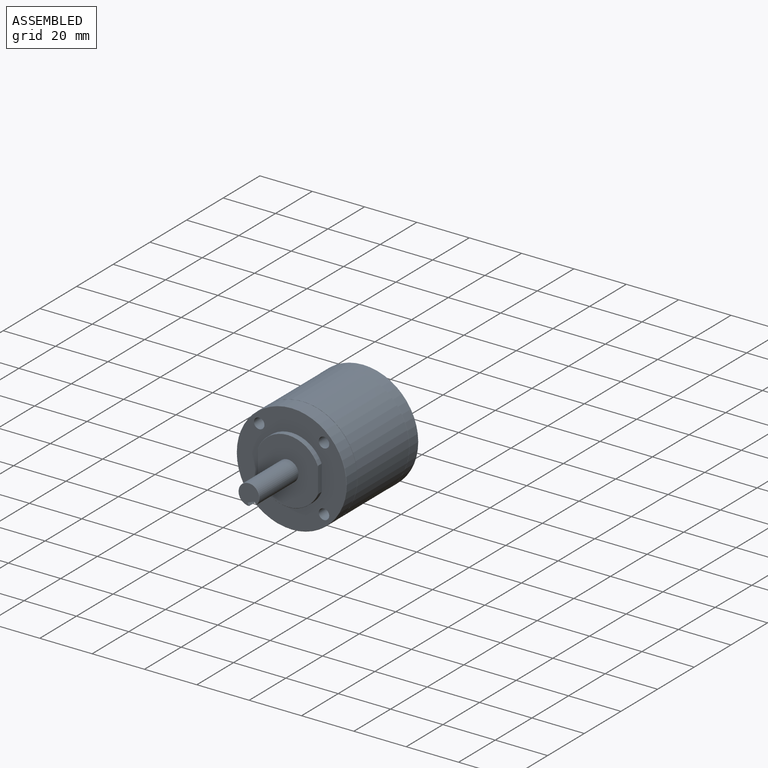
[diagram: assembled view]
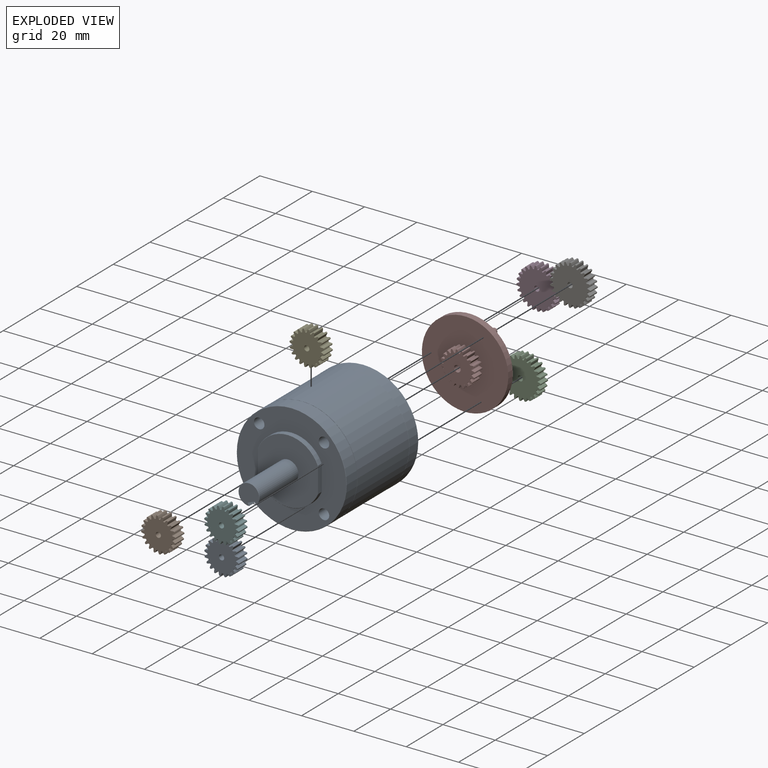
[diagram: exploded view]
GUIDED TOUR — MATED ASSEMBLY WITH SUBASSEMBLIES (Onshape document 576380d9e4b0a0decb21f6b3, AutoMate assembly 576380d9e4b0a0decb21f6b3_9d2c38b965b84d0261af29e2_6b41d30af105e05bc91e2684_default)

This assembly has 12 component occurrences arranged in 9 top-level units: 8 individual components plus 1 subassembly (S0). The tour has two levels: first the top level, where each subassembly is treated as one rigid unit; then each subassembly is toured internally in its own section (nesting deeper than one subassembly level is flattened into its subassembly's section).

Components are labeled P0..P11 across the whole record; subassembly units are labeled S0..S0. A mate is a constraint between two units; its type names the relative motion it leaves free:
  CYLINDRICAL — leaves both rotation about and translation along the listed axis free,
  FASTENED — locks the two components together rigidly (no relative motion),
  PLANAR — leaves sliding in the plane through the listed point (normal = the listed direction) and rotation about that normal free,
  REVOLUTE — leaves rotation about the listed axis free (a hinge),
  SLIDER — leaves translation along the listed axis free.
Axis/direction vectors are unit vectors and 'through' points are millimeter coordinates, both in the assembly's world frame.

TOP-LEVEL MATES (between units; each subassembly's internal mates are listed in its own section)
  1. REVOLUTE "Revolute 1": S0 <-> P2, axis (0.000, 1.000, 0.000) through (-12.04, 4.01, -4.84) mm
  2. REVOLUTE "Revolute 7": P8 <-> S0, axis (0.000, -1.000, 0.000) through (12.08, 4.01, 4.88) mm
  3. CYLINDRICAL "Cylindrical 1": P10 <-> S0, axis (0.000, -1.000, 0.000) through (0.02, 10.56, 0.02) mm
  4. REVOLUTE "Revolute 4": P5 <-> P10, axis (0.000, -1.000, 0.000) through (-12.97, 11.81, 0.53) mm
  5. PLANAR "Planar 1": P10 <-> P2, direction (0.000, -1.000, 0.000) through (0.02, 9.31, 0.02) mm
  6. REVOLUTE "Revolute 6": P9 <-> P10, axis (0.000, -1.000, 0.000) through (6.95, 11.81, 11.02) mm
  7. REVOLUTE "Revolute 2": S0 <-> P6, axis (0.000, 1.000, 0.000) through (-4.84, 4.01, 12.08) mm
  8. REVOLUTE "Revolute 5": P3 <-> P10, axis (0.000, -1.000, 0.000) through (6.08, 11.81, -11.48) mm
  9. REVOLUTE "Revolute 3": S0 <-> P11, axis (0.000, 1.000, 0.000) through (4.88, 4.01, -12.04) mm

TOP-LEVEL ASSEMBLY ORDER
  1. S0 — the base component [order heuristic]
  2. P8 — core [order heuristic]
  3. P10 — core [order heuristic]
  4. P11 — core [order heuristic]
  5. P3 — core [order heuristic]
  6. P5 — core [order heuristic]
  7. P9 — core [order heuristic]
  8. P2 [order verified]
  9. P6 [order verified]
Order-tag legend:
  [order verified] — this step's position reverses a verified removal order: the component was checked to insert without passing through the ones already placed.
  [order heuristic] — the first 7 components form the assembly's core: parts whose collision-free extraction could not be verified, listed in mate-graph order.

Of the 12 component occurrences, 11 carry the full construction recipe — the FeatureScript program that regenerates the part's solid from scratch; the rest are supplied as boundary geometry only. Each toured unit is shown spotlighted twice — assembled, then exploded with a leader line back to its socket (green = recipe-attached component, orange = geometry-only, blue = subassembly unit; the rest desaturated gray).
NOTE — document 2 of 3 of this assembly tour. The two overview renders and the header above are repeated from document 1; the component sections below continue where the previous document stopped.
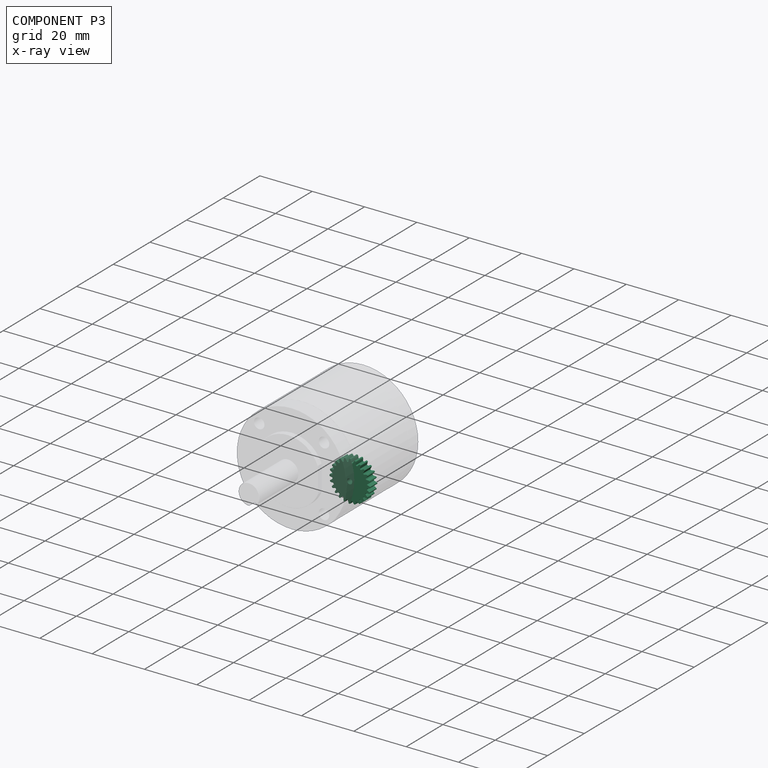
[diagram: component P3 — x-ray view]
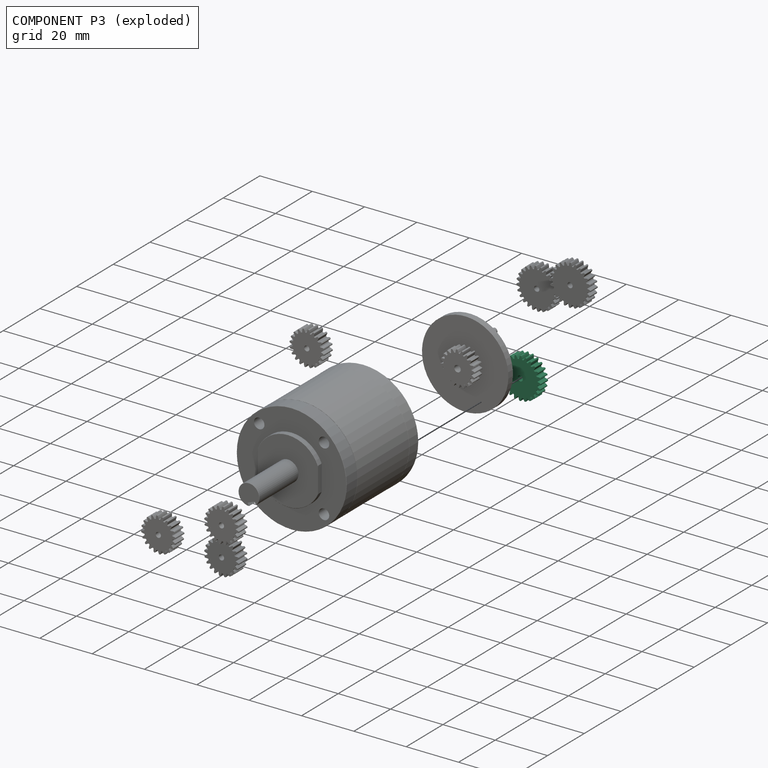
[diagram: component P3 — exploded]
COMPONENT P3 — recipe-attached (CADFS 00178055, mesh-verified: the recipe's output STEP matches this component's geometry to below the mesh-comparison resolution (tessellation chordal tolerance ~0.0336 mm)).
Held by: REVOLUTE mate "Revolute 5" to P10.
Construction recipe (FeatureScript — the CAD program that rebuilds this solid; sketch coordinates are in the units given by the * unit suffixes, e.g. mm):

FeatureScript 1540;
import(path : "onshape/std/geometry.fs", version : "1540.0");
import(path : "onshape/std/common.fs", version : "1540.0");
const mm = millimeter;
const VERTEX = EntityType.VERTEX;
const EDGE = EntityType.EDGE;
const FACE = EntityType.FACE;
const BODY = EntityType.BODY;
function v(x, y){return vector(x, y);}
function OD(order){return orderDisambiguation(order);}
function OSD(set){return originalSetDisambiguation(set);}
function TD(topology){return topologyDisambiguation(topology);}
function TDD(query){return trueDependencyDisambiguation(query);}
function sQuery(a, b, c) {return sketchEntityQuery(a, b, c);}

annotation { "Feature Type Name" : "Feature", "Feature Type Description" : "" }
export const myFeature = defineFeature(function(context is Context, id is Id, definition is map)
    precondition{}
    {
        {
            var Q0;
            Q0=qCreatedBy(makeId("Front.planeOp"),FACE);
            var sketch = newSketch(context, id + "F0", { "sketchPlane" : qUnion([Q0])});
            skCircle(sketch, "E0", {"center": v(0, 0) * mm, "radius": 6.6 * mm, "construction": true});
            skCircle(sketch, "E1", {"center": v(0, 0) * mm, "radius": 7.2 * mm, "construction": true});
            skCircle(sketch, "E2", {"center": v(0, 0) * mm, "radius": 7.8 * mm, "construction": true});
            skLineSegment(sketch, "E3", {"start": v(0, 0) * mm, "end": v(0, 6.31) * mm, "construction": true});
            skCircle(sketch, "E4", {"center": v(0, 7.2) * mm, "radius": 4.32 * mm, "construction": true});
            skCircle(sketch, "E5.cCircle", {"center": v(0, 0) * mm, "radius": 6.31 * mm, "construction": true});
            skLineSegment(sketch, "E5.0", {"start": v(0, 6.31) * mm, "end": v(0.82, 6.26) * mm, "construction": true});
            skLineSegment(sketch, "E5.1", {"start": v(0.82, 6.26) * mm, "end": v(1.63, 6.1) * mm, "construction": true});
            skLineSegment(sketch, "E5.2", {"start": v(1.63, 6.1) * mm, "end": v(2.41, 5.83) * mm, "construction": true});
            skLineSegment(sketch, "E5.3", {"start": v(2.41, 5.83) * mm, "end": v(3.16, 5.46) * mm, "construction": true});
            skLineSegment(sketch, "E5.4", {"start": v(3.16, 5.46) * mm, "end": v(3.84, 5) * mm, "construction": true});
            skLineSegment(sketch, "E5.5", {"start": v(3.84, 5) * mm, "end": v(4.46, 4.46) * mm, "construction": true});
            skLineSegment(sketch, "E5.6", {"start": v(4.46, 4.46) * mm, "end": v(5, 3.84) * mm, "construction": true});
            skLineSegment(sketch, "E5.7", {"start": v(5, 3.84) * mm, "end": v(5.46, 3.16) * mm, "construction": true});
            skLineSegment(sketch, "E5.8", {"start": v(5.46, 3.16) * mm, "end": v(5.83, 2.41) * mm, "construction": true});
            skLineSegment(sketch, "E5.9", {"start": v(5.83, 2.41) * mm, "end": v(6.1, 1.63) * mm, "construction": true});
            skLineSegment(sketch, "E5.10", {"start": v(6.1, 1.63) * mm, "end": v(6.26, 0.82) * mm, "construction": true});
            skLineSegment(sketch, "E5.11", {"start": v(6.26, 0.82) * mm, "end": v(6.31, 0) * mm, "construction": true});
            skLineSegment(sketch, "E5.12", {"start": v(6.31, 0) * mm, "end": v(6.26, -0.82) * mm, "construction": true});
            skLineSegment(sketch, "E5.13", {"start": v(6.26, -0.82) * mm, "end": v(6.1, -1.63) * mm, "construction": true});
            skLineSegment(sketch, "E5.14", {"start": v(6.1, -1.63) * mm, "end": v(5.83, -2.41) * mm, "construction": true});
            skLineSegment(sketch, "E5.15", {"start": v(5.83, -2.41) * mm, "end": v(5.46, -3.16) * mm, "construction": true});
            skLineSegment(sketch, "E5.16", {"start": v(5.46, -3.16) * mm, "end": v(5, -3.84) * mm, "construction": true});
            skLineSegment(sketch, "E5.17", {"start": v(5, -3.84) * mm, "end": v(4.46, -4.46) * mm, "construction": true});
            skLineSegment(sketch, "E5.18", {"start": v(4.46, -4.46) * mm, "end": v(3.84, -5) * mm, "construction": true});
            skLineSegment(sketch, "E5.19", {"start": v(3.84, -5) * mm, "end": v(3.16, -5.46) * mm, "construction": true});
            skLineSegment(sketch, "E5.20", {"start": v(3.16, -5.46) * mm, "end": v(2.41, -5.83) * mm, "construction": true});
            skLineSegment(sketch, "E5.21", {"start": v(2.41, -5.83) * mm, "end": v(1.63, -6.1) * mm, "construction": true});
            skLineSegment(sketch, "E5.22", {"start": v(1.63, -6.1) * mm, "end": v(0.82, -6.26) * mm, "construction": true});
            skLineSegment(sketch, "E5.23", {"start": v(0.82, -6.26) * mm, "end": v(0, -6.31) * mm, "construction": true});
            skLineSegment(sketch, "E5.24", {"start": v(0, -6.31) * mm, "end": v(-0.82, -6.26) * mm, "construction": true});
            skLineSegment(sketch, "E5.25", {"start": v(-0.82, -6.26) * mm, "end": v(-1.63, -6.1) * mm, "construction": true});
            skLineSegment(sketch, "E5.26", {"start": v(-1.63, -6.1) * mm, "end": v(-2.41, -5.83) * mm, "construction": true});
            skLineSegment(sketch, "E5.27", {"start": v(-2.41, -5.83) * mm, "end": v(-3.16, -5.46) * mm, "construction": true});
            skLineSegment(sketch, "E5.28", {"start": v(-3.16, -5.46) * mm, "end": v(-3.84, -5) * mm, "construction": true});
            skLineSegment(sketch, "E5.29", {"start": v(-3.84, -5) * mm, "end": v(-4.46, -4.46) * mm, "construction": true});
            skLineSegment(sketch, "E5.30", {"start": v(-4.46, -4.46) * mm, "end": v(-5, -3.84) * mm, "construction": true});
            skLineSegment(sketch, "E5.31", {"start": v(-5, -3.84) * mm, "end": v(-5.46, -3.16) * mm, "construction": true});
            skLineSegment(sketch, "E5.32", {"start": v(-5.46, -3.16) * mm, "end": v(-5.83, -2.41) * mm, "construction": true});
            skLineSegment(sketch, "E5.33", {"start": v(-5.83, -2.41) * mm, "end": v(-6.1, -1.63) * mm, "construction": true});
            skLineSegment(sketch, "E5.34", {"start": v(-6.1, -1.63) * mm, "end": v(-6.26, -0.82) * mm, "construction": true});
            skLineSegment(sketch, "E5.35", {"start": v(-6.26, -0.82) * mm, "end": v(-6.31, 0) * mm, "construction": true});
            skLineSegment(sketch, "E5.36", {"start": v(-6.31, 0) * mm, "end": v(-6.26, 0.82) * mm, "construction": true});
            skLineSegment(sketch, "E5.37", {"start": v(-6.26, 0.82) * mm, "end": v(-6.1, 1.63) * mm, "construction": true});
            skLineSegment(sketch, "E5.38", {"start": v(-6.1, 1.63) * mm, "end": v(-5.83, 2.41) * mm, "construction": true});
            skLineSegment(sketch, "E5.39", {"start": v(-5.83, 2.41) * mm, "end": v(-5.46, 3.16) * mm, "construction": true});
            skLineSegment(sketch, "E5.40", {"start": v(-5.46, 3.16) * mm, "end": v(-5, 3.84) * mm, "construction": true});
            skLineSegment(sketch, "E5.41", {"start": v(-5, 3.84) * mm, "end": v(-4.46, 4.46) * mm, "construction": true});
            skLineSegment(sketch, "E5.42", {"start": v(-4.46, 4.46) * mm, "end": v(-3.84, 5) * mm, "construction": true});
            skLineSegment(sketch, "E5.43", {"start": v(-3.84, 5) * mm, "end": v(-3.16, 5.46) * mm, "construction": true});
            skLineSegment(sketch, "E5.44", {"start": v(-3.16, 5.46) * mm, "end": v(-2.41, 5.83) * mm, "construction": true});
            skLineSegment(sketch, "E5.45", {"start": v(-2.41, 5.83) * mm, "end": v(-1.63, 6.1) * mm, "construction": true});
            skLineSegment(sketch, "E5.46", {"start": v(-1.63, 6.1) * mm, "end": v(-0.82, 6.26) * mm, "construction": true});
            skLineSegment(sketch, "E5.47", {"start": v(-0.82, 6.26) * mm, "end": v(0, 6.31) * mm, "construction": true});
            skLineSegment(sketch, "E6.0", {"start": v(-0.41, 6.31) * mm, "end": v(0.41, 6.31) * mm});
            skLineSegment(sketch, "E6.1", {"start": v(0.41, 6.31) * mm, "end": v(1.23, 6.2) * mm});
            skLineSegment(sketch, "E6.2", {"start": v(1.23, 6.2) * mm, "end": v(2.03, 5.99) * mm});
            skLineSegment(sketch, "E6.3", {"start": v(2.03, 5.99) * mm, "end": v(2.8, 5.67) * mm});
            skLineSegment(sketch, "E6.4", {"start": v(2.8, 5.67) * mm, "end": v(3.51, 5.26) * mm});
            skLineSegment(sketch, "E6.5", {"start": v(3.51, 5.26) * mm, "end": v(4.17, 4.75) * mm});
            skLineSegment(sketch, "E6.6", {"start": v(4.17, 4.75) * mm, "end": v(4.75, 4.17) * mm});
            skLineSegment(sketch, "E6.7", {"start": v(4.75, 4.17) * mm, "end": v(5.26, 3.51) * mm, "construction": true});
            skLineSegment(sketch, "E6.8", {"start": v(5.26, 3.51) * mm, "end": v(5.67, 2.8) * mm});
            skLineSegment(sketch, "E6.9", {"start": v(5.67, 2.8) * mm, "end": v(5.99, 2.03) * mm});
            skLineSegment(sketch, "E6.10", {"start": v(5.99, 2.03) * mm, "end": v(6.2, 1.23) * mm});
            skLineSegment(sketch, "E6.11", {"start": v(6.2, 1.23) * mm, "end": v(6.31, 0.41) * mm});
            skLineSegment(sketch, "E6.12", {"start": v(6.31, 0.41) * mm, "end": v(6.31, -0.41) * mm});
            skLineSegment(sketch, "E6.13", {"start": v(6.31, -0.41) * mm, "end": v(6.2, -1.23) * mm});
            skLineSegment(sketch, "E6.14", {"start": v(6.2, -1.23) * mm, "end": v(5.99, -2.03) * mm});
            skLineSegment(sketch, "E6.15", {"start": v(5.99, -2.03) * mm, "end": v(5.67, -2.8) * mm});
            skLineSegment(sketch, "E6.16", {"start": v(5.67, -2.8) * mm, "end": v(5.26, -3.51) * mm});
            skLineSegment(sketch, "E6.17", {"start": v(5.26, -3.51) * mm, "end": v(4.75, -4.17) * mm});
            skLineSegment(sketch, "E6.18", {"start": v(4.75, -4.17) * mm, "end": v(4.17, -4.75) * mm});
            skLineSegment(sketch, "E6.19", {"start": v(4.17, -4.75) * mm, "end": v(3.51, -5.26) * mm});
            skLineSegment(sketch, "E6.20", {"start": v(3.51, -5.26) * mm, "end": v(2.8, -5.67) * mm});
            skLineSegment(sketch, "E6.21", {"start": v(2.8, -5.67) * mm, "end": v(2.03, -5.99) * mm});
            skLineSegment(sketch, "E6.22", {"start": v(2.03, -5.99) * mm, "end": v(1.23, -6.2) * mm});
            skLineSegment(sketch, "E6.23", {"start": v(1.23, -6.2) * mm, "end": v(0.41, -6.31) * mm});
            skLineSegment(sketch, "E6.24", {"start": v(0.41, -6.31) * mm, "end": v(-0.41, -6.31) * mm});
            skLineSegment(sketch, "E6.25", {"start": v(-0.41, -6.31) * mm, "end": v(-1.23, -6.2) * mm});
            skLineSegment(sketch, "E6.26", {"start": v(-1.23, -6.2) * mm, "end": v(-2.03, -5.99) * mm});
            skLineSegment(sketch, "E6.27", {"start": v(-2.03, -5.99) * mm, "end": v(-2.8, -5.67) * mm});
            skLineSegment(sketch, "E6.28", {"start": v(-2.8, -5.67) * mm, "end": v(-3.51, -5.26) * mm});
            skLineSegment(sketch, "E6.29", {"start": v(-3.51, -5.26) * mm, "end": v(-4.17, -4.75) * mm});
            skLineSegment(sketch, "E6.30", {"start": v(-4.17, -4.75) * mm, "end": v(-4.75, -4.17) * mm});
            skLineSegment(sketch, "E6.31", {"start": v(-4.75, -4.17) * mm, "end": v(-5.26, -3.51) * mm});
            skLineSegment(sketch, "E6.32", {"start": v(-5.26, -3.51) * mm, "end": v(-5.67, -2.8) * mm});
            skLineSegment(sketch, "E6.33", {"start": v(-5.67, -2.8) * mm, "end": v(-5.99, -2.03) * mm});
            skLineSegment(sketch, "E6.34", {"start": v(-5.99, -2.03) * mm, "end": v(-6.2, -1.23) * mm});
            skLineSegment(sketch, "E6.35", {"start": v(-6.2, -1.23) * mm, "end": v(-6.31, -0.41) * mm});
            skLineSegment(sketch, "E6.36", {"start": v(-6.31, -0.41) * mm, "end": v(-6.31, 0.41) * mm});
            skLineSegment(sketch, "E6.37", {"start": v(-6.31, 0.41) * mm, "end": v(-6.2, 1.23) * mm});
            skLineSegment(sketch, "E6.38", {"start": v(-6.2, 1.23) * mm, "end": v(-5.99, 2.03) * mm});
            skLineSegment(sketch, "E6.39", {"start": v(-5.99, 2.03) * mm, "end": v(-5.67, 2.8) * mm});
            skLineSegment(sketch, "E6.40", {"start": v(-5.67, 2.8) * mm, "end": v(-5.26, 3.51) * mm});
            skLineSegment(sketch, "E6.41", {"start": v(-5.26, 3.51) * mm, "end": v(-4.75, 4.17) * mm});
            skLineSegment(sketch, "E6.42", {"start": v(-4.75, 4.17) * mm, "end": v(-4.17, 4.75) * mm});
            skLineSegment(sketch, "E6.43", {"start": v(-4.17, 4.75) * mm, "end": v(-3.51, 5.26) * mm});
            skLineSegment(sketch, "E6.44", {"start": v(-3.51, 5.26) * mm, "end": v(-2.8, 5.67) * mm});
            skLineSegment(sketch, "E6.45", {"start": v(-2.8, 5.67) * mm, "end": v(-2.03, 5.99) * mm});
            skLineSegment(sketch, "E6.46", {"start": v(-2.03, 5.99) * mm, "end": v(-1.23, 6.2) * mm});
            skLineSegment(sketch, "E6.47", {"start": v(-1.23, 6.2) * mm, "end": v(-0.41, 6.31) * mm});
            skPoint(sketch, "E6.0.midPoint", {"position": v(0, 6.31) * mm});
            skLineSegment(sketch, "E7", {"start": v(0, 7.2) * mm, "end": v(-9.03, 7.2) * mm, "construction": true});
            skLineSegment(sketch, "E8", {"start": v(0, 7.2) * mm, "end": v(-8.97, 3.93) * mm, "construction": true});
            skCircle(sketch, "E9", {"center": v(-4.06, 5.72) * mm, "radius": 4.32 * mm, "construction": true});
            skArc(sketch, "E10", {"start": v(-0.23, 7.71) * mm, "mid": v(0, 7.22) * mm, "end": v(0.15, 6.7) * mm});
            skLineSegment(sketch, "E11", {"start": v(0, 0) * mm, "end": v(-0.41, 6.31) * mm, "construction": true});
            skArc(sketch, "E12.MirrorCS", {"start": v(-0.78, 7.68) * mm, "mid": v(-0.93, 7.16) * mm, "end": v(-1.02, 6.63) * mm});
            skArc(sketch, "E13", {"start": v(-0.66, 7.77) * mm, "mid": v(-0.51, 7.78) * mm, "end": v(-0.36, 7.8) * mm});
            skArc(sketch, "E14", {"start": v(-1.14, 6.5) * mm, "mid": v(0.43, -6.59) * mm, "end": v(0.28, 6.6) * mm});
            skPoint(sketch, "E15.visualSharp", {"position": v(-1.03, 6.52) * mm});
            skArc(sketch, "E15.filletArc", {"start": v(-1.14, 6.5) * mm, "mid": v(-1.06, 6.54) * mm, "end": v(-1.02, 6.63) * mm});
            skPoint(sketch, "E16.visualSharp", {"position": v(0.17, 6.6) * mm});
            skArc(sketch, "E16.filletArc", {"start": v(0.15, 6.7) * mm, "mid": v(0.2, 6.63) * mm, "end": v(0.28, 6.6) * mm});
            skPoint(sketch, "E17.visualSharp", {"position": v(-0.75, 7.76) * mm});
            skArc(sketch, "E17.filletArc", {"start": v(-0.66, 7.77) * mm, "mid": v(-0.74, 7.74) * mm, "end": v(-0.78, 7.68) * mm});
            skPoint(sketch, "E18.visualSharp", {"position": v(-0.27, 7.8) * mm});
            skArc(sketch, "E18.filletArc", {"start": v(-0.23, 7.71) * mm, "mid": v(-0.28, 7.77) * mm, "end": v(-0.36, 7.8) * mm});
            skArc(sketch, "E19.1.0", {"start": v(-2.78, 5.98) * mm, "mid": v(-2.72, 6.05) * mm, "end": v(-2.7, 6.14) * mm});
            skArc(sketch, "E19.1.1", {"start": v(-2.74, 7.21) * mm, "mid": v(-2.76, 6.67) * mm, "end": v(-2.7, 6.14) * mm});
            skArc(sketch, "E19.1.2", {"start": v(-2.65, 7.34) * mm, "mid": v(-2.71, 7.29) * mm, "end": v(-2.74, 7.21) * mm});
            skArc(sketch, "E19.1.3", {"start": v(-2.65, 7.34) * mm, "mid": v(-2.5, 7.39) * mm, "end": v(-2.36, 7.43) * mm});
            skArc(sketch, "E19.1.4", {"start": v(-2.21, 7.4) * mm, "mid": v(-2.28, 7.43) * mm, "end": v(-2.36, 7.43) * mm});
            skArc(sketch, "E19.1.5", {"start": v(-2.21, 7.4) * mm, "mid": v(-1.88, 6.97) * mm, "end": v(-1.6, 6.51) * mm});
            skArc(sketch, "E19.1.6", {"start": v(-1.6, 6.51) * mm, "mid": v(-1.53, 6.45) * mm, "end": v(-1.43, 6.44) * mm});
            skArc(sketch, "E19.2.0", {"start": v(-4.24, 5.06) * mm, "mid": v(-4.19, 5.14) * mm, "end": v(-4.2, 5.23) * mm});
            skArc(sketch, "E19.2.1", {"start": v(-4.52, 6.26) * mm, "mid": v(-4.39, 5.73) * mm, "end": v(-4.2, 5.23) * mm});
            skArc(sketch, "E19.2.2", {"start": v(-4.46, 6.4) * mm, "mid": v(-4.5, 6.34) * mm, "end": v(-4.52, 6.26) * mm});
            skArc(sketch, "E19.2.3", {"start": v(-4.46, 6.4) * mm, "mid": v(-4.33, 6.49) * mm, "end": v(-4.2, 6.57) * mm});
            skArc(sketch, "E19.2.4", {"start": v(-4.05, 6.57) * mm, "mid": v(-4.13, 6.6) * mm, "end": v(-4.2, 6.57) * mm});
            skArc(sketch, "E19.2.5", {"start": v(-4.05, 6.57) * mm, "mid": v(-3.62, 6.25) * mm, "end": v(-3.23, 5.88) * mm});
            skArc(sketch, "E19.2.6", {"start": v(-3.23, 5.88) * mm, "mid": v(-3.14, 5.84) * mm, "end": v(-3.05, 5.85) * mm});
            skArc(sketch, "E19.3.0", {"start": v(-5.4, 3.8) * mm, "mid": v(-5.38, 3.88) * mm, "end": v(-5.4, 3.96) * mm});
            skArc(sketch, "E19.3.1", {"start": v(-5.98, 4.88) * mm, "mid": v(-5.72, 4.4) * mm, "end": v(-5.4, 3.96) * mm});
            skArc(sketch, "E19.3.2", {"start": v(-5.96, 5.03) * mm, "mid": v(-6, 4.96) * mm, "end": v(-5.98, 4.88) * mm});
            skArc(sketch, "E19.3.3", {"start": v(-5.96, 5.03) * mm, "mid": v(-5.86, 5.14) * mm, "end": v(-5.76, 5.25) * mm});
            skArc(sketch, "E19.3.4", {"start": v(-5.61, 5.3) * mm, "mid": v(-5.7, 5.3) * mm, "end": v(-5.76, 5.25) * mm});
            skArc(sketch, "E19.3.5", {"start": v(-5.61, 5.3) * mm, "mid": v(-5.11, 5.1) * mm, "end": v(-4.64, 4.85) * mm});
            skArc(sketch, "E19.3.6", {"start": v(-4.64, 4.85) * mm, "mid": v(-4.55, 4.82) * mm, "end": v(-4.46, 4.86) * mm});
            skArc(sketch, "E19.4.0", {"start": v(-6.2, 2.26) * mm, "mid": v(-6.2, 2.36) * mm, "end": v(-6.25, 2.43) * mm});
            skArc(sketch, "E19.4.1", {"start": v(-7.04, 3.16) * mm, "mid": v(-6.67, 2.77) * mm, "end": v(-6.25, 2.43) * mm});
            skArc(sketch, "E19.4.2", {"start": v(-7.06, 3.31) * mm, "mid": v(-7.07, 3.23) * mm, "end": v(-7.04, 3.16) * mm});
            skArc(sketch, "E19.4.3", {"start": v(-7.06, 3.31) * mm, "mid": v(-7, 3.45) * mm, "end": v(-6.93, 3.58) * mm});
            skArc(sketch, "E19.4.4", {"start": v(-6.8, 3.66) * mm, "mid": v(-6.87, 3.64) * mm, "end": v(-6.93, 3.58) * mm});
            skArc(sketch, "E19.4.5", {"start": v(-6.8, 3.66) * mm, "mid": v(-6.26, 3.6) * mm, "end": v(-5.73, 3.48) * mm});
            skArc(sketch, "E19.4.6", {"start": v(-5.73, 3.48) * mm, "mid": v(-5.64, 3.48) * mm, "end": v(-5.57, 3.54) * mm});
            skArc(sketch, "E19.5.0", {"start": v(-6.57, 0.58) * mm, "mid": v(-6.6, 0.67) * mm, "end": v(-6.67, 0.73) * mm});
            skArc(sketch, "E19.5.1", {"start": v(-7.62, 1.23) * mm, "mid": v(-7.16, 0.95) * mm, "end": v(-6.67, 0.73) * mm});
            skArc(sketch, "E19.5.2", {"start": v(-7.68, 1.37) * mm, "mid": v(-7.67, 1.3) * mm, "end": v(-7.62, 1.23) * mm});
            skArc(sketch, "E19.5.3", {"start": v(-7.68, 1.37) * mm, "mid": v(-7.65, 1.52) * mm, "end": v(-7.62, 1.67) * mm});
            skArc(sketch, "E19.5.4", {"start": v(-7.5, 1.78) * mm, "mid": v(-7.58, 1.74) * mm, "end": v(-7.62, 1.67) * mm});
            skArc(sketch, "E19.5.5", {"start": v(-7.5, 1.78) * mm, "mid": v(-6.98, 1.86) * mm, "end": v(-6.44, 1.88) * mm});
            skArc(sketch, "E19.5.6", {"start": v(-6.44, 1.88) * mm, "mid": v(-6.35, 1.9) * mm, "end": v(-6.3, 1.98) * mm});
            skArc(sketch, "E19.6.0", {"start": v(-6.5, -1.14) * mm, "mid": v(-6.54, -1.06) * mm, "end": v(-6.63, -1.02) * mm});
            skArc(sketch, "E19.6.1", {"start": v(-7.68, -0.78) * mm, "mid": v(-7.16, -0.93) * mm, "end": v(-6.63, -1.02) * mm});
            skArc(sketch, "E19.6.2", {"start": v(-7.77, -0.66) * mm, "mid": v(-7.74, -0.74) * mm, "end": v(-7.68, -0.78) * mm});
            skArc(sketch, "E19.6.3", {"start": v(-7.77, -0.66) * mm, "mid": v(-7.78, -0.51) * mm, "end": v(-7.8, -0.36) * mm});
            skArc(sketch, "E19.6.4", {"start": v(-7.71, -0.23) * mm, "mid": v(-7.77, -0.28) * mm, "end": v(-7.8, -0.36) * mm});
            skArc(sketch, "E19.6.5", {"start": v(-7.71, -0.23) * mm, "mid": v(-7.22, 0) * mm, "end": v(-6.7, 0.15) * mm});
            skArc(sketch, "E19.6.6", {"start": v(-6.7, 0.15) * mm, "mid": v(-6.63, 0.2) * mm, "end": v(-6.6, 0.28) * mm});
            skArc(sketch, "E19.7.0", {"start": v(-5.98, -2.78) * mm, "mid": v(-6.05, -2.72) * mm, "end": v(-6.14, -2.7) * mm});
            skArc(sketch, "E19.7.1", {"start": v(-7.21, -2.74) * mm, "mid": v(-6.67, -2.76) * mm, "end": v(-6.14, -2.7) * mm});
            skArc(sketch, "E19.7.2", {"start": v(-7.34, -2.65) * mm, "mid": v(-7.29, -2.71) * mm, "end": v(-7.21, -2.74) * mm});
            skArc(sketch, "E19.7.3", {"start": v(-7.34, -2.65) * mm, "mid": v(-7.39, -2.5) * mm, "end": v(-7.43, -2.36) * mm});
            skArc(sketch, "E19.7.4", {"start": v(-7.4, -2.21) * mm, "mid": v(-7.43, -2.28) * mm, "end": v(-7.43, -2.36) * mm});
            skArc(sketch, "E19.7.5", {"start": v(-7.4, -2.21) * mm, "mid": v(-6.97, -1.88) * mm, "end": v(-6.51, -1.6) * mm});
            skArc(sketch, "E19.7.6", {"start": v(-6.51, -1.6) * mm, "mid": v(-6.45, -1.53) * mm, "end": v(-6.44, -1.43) * mm});
            skArc(sketch, "E19.8.0", {"start": v(-5.06, -4.24) * mm, "mid": v(-5.14, -4.19) * mm, "end": v(-5.23, -4.2) * mm});
            skArc(sketch, "E19.8.1", {"start": v(-6.26, -4.52) * mm, "mid": v(-5.73, -4.39) * mm, "end": v(-5.23, -4.2) * mm});
            skArc(sketch, "E19.8.2", {"start": v(-6.4, -4.46) * mm, "mid": v(-6.34, -4.5) * mm, "end": v(-6.26, -4.52) * mm});
            skArc(sketch, "E19.8.3", {"start": v(-6.4, -4.46) * mm, "mid": v(-6.49, -4.33) * mm, "end": v(-6.57, -4.2) * mm});
            skArc(sketch, "E19.8.4", {"start": v(-6.57, -4.05) * mm, "mid": v(-6.6, -4.13) * mm, "end": v(-6.57, -4.2) * mm});
            skArc(sketch, "E19.8.5", {"start": v(-6.57, -4.05) * mm, "mid": v(-6.25, -3.62) * mm, "end": v(-5.88, -3.23) * mm});
            skArc(sketch, "E19.8.6", {"start": v(-5.88, -3.23) * mm, "mid": v(-5.84, -3.14) * mm, "end": v(-5.85, -3.05) * mm});
            skArc(sketch, "E19.9.0", {"start": v(-3.8, -5.4) * mm, "mid": v(-3.88, -5.38) * mm, "end": v(-3.96, -5.4) * mm});
            skArc(sketch, "E19.9.1", {"start": v(-4.88, -5.98) * mm, "mid": v(-4.4, -5.72) * mm, "end": v(-3.96, -5.4) * mm});
            skArc(sketch, "E19.9.2", {"start": v(-5.03, -5.96) * mm, "mid": v(-4.96, -6) * mm, "end": v(-4.88, -5.98) * mm});
            skArc(sketch, "E19.9.3", {"start": v(-5.03, -5.96) * mm, "mid": v(-5.14, -5.86) * mm, "end": v(-5.25, -5.76) * mm});
            skArc(sketch, "E19.9.4", {"start": v(-5.3, -5.61) * mm, "mid": v(-5.3, -5.7) * mm, "end": v(-5.25, -5.76) * mm});
            skArc(sketch, "E19.9.5", {"start": v(-5.3, -5.61) * mm, "mid": v(-5.1, -5.11) * mm, "end": v(-4.85, -4.64) * mm});
            skArc(sketch, "E19.9.6", {"start": v(-4.85, -4.64) * mm, "mid": v(-4.82, -4.55) * mm, "end": v(-4.86, -4.46) * mm});
            skArc(sketch, "E19.10.0", {"start": v(-2.26, -6.2) * mm, "mid": v(-2.36, -6.2) * mm, "end": v(-2.43, -6.25) * mm});
            skArc(sketch, "E19.10.1", {"start": v(-3.16, -7.04) * mm, "mid": v(-2.77, -6.67) * mm, "end": v(-2.43, -6.25) * mm});
            skArc(sketch, "E19.10.2", {"start": v(-3.31, -7.06) * mm, "mid": v(-3.23, -7.07) * mm, "end": v(-3.16, -7.04) * mm});
            skArc(sketch, "E19.10.3", {"start": v(-3.31, -7.06) * mm, "mid": v(-3.45, -7) * mm, "end": v(-3.58, -6.93) * mm});
            skArc(sketch, "E19.10.4", {"start": v(-3.66, -6.8) * mm, "mid": v(-3.64, -6.87) * mm, "end": v(-3.58, -6.93) * mm});
            skArc(sketch, "E19.10.5", {"start": v(-3.66, -6.8) * mm, "mid": v(-3.6, -6.26) * mm, "end": v(-3.48, -5.73) * mm});
            skArc(sketch, "E19.10.6", {"start": v(-3.48, -5.73) * mm, "mid": v(-3.48, -5.64) * mm, "end": v(-3.54, -5.57) * mm});
            skArc(sketch, "E19.11.0", {"start": v(-0.58, -6.57) * mm, "mid": v(-0.67, -6.6) * mm, "end": v(-0.73, -6.67) * mm});
            skArc(sketch, "E19.11.1", {"start": v(-1.23, -7.62) * mm, "mid": v(-0.95, -7.16) * mm, "end": v(-0.73, -6.67) * mm});
            skArc(sketch, "E19.11.2", {"start": v(-1.37, -7.68) * mm, "mid": v(-1.3, -7.67) * mm, "end": v(-1.23, -7.62) * mm});
            skArc(sketch, "E19.11.3", {"start": v(-1.37, -7.68) * mm, "mid": v(-1.52, -7.65) * mm, "end": v(-1.67, -7.62) * mm});
            skArc(sketch, "E19.11.4", {"start": v(-1.78, -7.5) * mm, "mid": v(-1.74, -7.58) * mm, "end": v(-1.67, -7.62) * mm});
            skArc(sketch, "E19.11.5", {"start": v(-1.78, -7.5) * mm, "mid": v(-1.86, -6.98) * mm, "end": v(-1.88, -6.44) * mm});
            skArc(sketch, "E19.11.6", {"start": v(-1.88, -6.44) * mm, "mid": v(-1.9, -6.35) * mm, "end": v(-1.98, -6.3) * mm});
            skArc(sketch, "E19.12.0", {"start": v(1.14, -6.5) * mm, "mid": v(1.06, -6.54) * mm, "end": v(1.02, -6.63) * mm});
            skArc(sketch, "E19.12.1", {"start": v(0.78, -7.68) * mm, "mid": v(0.93, -7.16) * mm, "end": v(1.02, -6.63) * mm});
            skArc(sketch, "E19.12.2", {"start": v(0.66, -7.77) * mm, "mid": v(0.74, -7.74) * mm, "end": v(0.78, -7.68) * mm});
            skArc(sketch, "E19.12.3", {"start": v(0.66, -7.77) * mm, "mid": v(0.51, -7.78) * mm, "end": v(0.36, -7.8) * mm});
            skArc(sketch, "E19.12.4", {"start": v(0.23, -7.71) * mm, "mid": v(0.28, -7.77) * mm, "end": v(0.36, -7.8) * mm});
            skArc(sketch, "E19.12.5", {"start": v(0.23, -7.71) * mm, "mid": v(0, -7.22) * mm, "end": v(-0.15, -6.7) * mm});
            skArc(sketch, "E19.12.6", {"start": v(-0.15, -6.7) * mm, "mid": v(-0.2, -6.63) * mm, "end": v(-0.28, -6.6) * mm});
            skArc(sketch, "E19.13.0", {"start": v(2.78, -5.98) * mm, "mid": v(2.72, -6.05) * mm, "end": v(2.7, -6.14) * mm});
            skArc(sketch, "E19.13.1", {"start": v(2.74, -7.21) * mm, "mid": v(2.76, -6.67) * mm, "end": v(2.7, -6.14) * mm});
            skArc(sketch, "E19.13.2", {"start": v(2.65, -7.34) * mm, "mid": v(2.71, -7.29) * mm, "end": v(2.74, -7.21) * mm});
            skArc(sketch, "E19.13.3", {"start": v(2.65, -7.34) * mm, "mid": v(2.5, -7.39) * mm, "end": v(2.36, -7.43) * mm});
            skArc(sketch, "E19.13.4", {"start": v(2.21, -7.4) * mm, "mid": v(2.28, -7.43) * mm, "end": v(2.36, -7.43) * mm});
            skArc(sketch, "E19.13.5", {"start": v(2.21, -7.4) * mm, "mid": v(1.88, -6.97) * mm, "end": v(1.6, -6.51) * mm});
            skArc(sketch, "E19.13.6", {"start": v(1.6, -6.51) * mm, "mid": v(1.53, -6.45) * mm, "end": v(1.43, -6.44) * mm});
            skArc(sketch, "E19.14.0", {"start": v(4.24, -5.06) * mm, "mid": v(4.19, -5.14) * mm, "end": v(4.2, -5.23) * mm});
            skArc(sketch, "E19.14.1", {"start": v(4.52, -6.26) * mm, "mid": v(4.39, -5.73) * mm, "end": v(4.2, -5.23) * mm});
            skArc(sketch, "E19.14.2", {"start": v(4.46, -6.4) * mm, "mid": v(4.5, -6.34) * mm, "end": v(4.52, -6.26) * mm});
            skArc(sketch, "E19.14.3", {"start": v(4.46, -6.4) * mm, "mid": v(4.33, -6.49) * mm, "end": v(4.2, -6.57) * mm});
            skArc(sketch, "E19.14.4", {"start": v(4.05, -6.57) * mm, "mid": v(4.13, -6.6) * mm, "end": v(4.2, -6.57) * mm});
            skArc(sketch, "E19.14.5", {"start": v(4.05, -6.57) * mm, "mid": v(3.62, -6.25) * mm, "end": v(3.23, -5.88) * mm});
            skArc(sketch, "E19.14.6", {"start": v(3.23, -5.88) * mm, "mid": v(3.14, -5.84) * mm, "end": v(3.05, -5.85) * mm});
            skArc(sketch, "E19.15.0", {"start": v(5.4, -3.8) * mm, "mid": v(5.38, -3.88) * mm, "end": v(5.4, -3.96) * mm});
            skArc(sketch, "E19.15.1", {"start": v(5.98, -4.88) * mm, "mid": v(5.72, -4.4) * mm, "end": v(5.4, -3.96) * mm});
            skArc(sketch, "E19.15.2", {"start": v(5.96, -5.03) * mm, "mid": v(6, -4.96) * mm, "end": v(5.98, -4.88) * mm});
            skArc(sketch, "E19.15.3", {"start": v(5.96, -5.03) * mm, "mid": v(5.86, -5.14) * mm, "end": v(5.76, -5.25) * mm});
            skArc(sketch, "E19.15.4", {"start": v(5.61, -5.3) * mm, "mid": v(5.7, -5.3) * mm, "end": v(5.76, -5.25) * mm});
            skArc(sketch, "E19.15.5", {"start": v(5.61, -5.3) * mm, "mid": v(5.11, -5.1) * mm, "end": v(4.64, -4.85) * mm});
            skArc(sketch, "E19.15.6", {"start": v(4.64, -4.85) * mm, "mid": v(4.55, -4.82) * mm, "end": v(4.46, -4.86) * mm});
            skArc(sketch, "E19.16.0", {"start": v(6.2, -2.26) * mm, "mid": v(6.2, -2.36) * mm, "end": v(6.25, -2.43) * mm});
            skArc(sketch, "E19.16.1", {"start": v(7.04, -3.16) * mm, "mid": v(6.67, -2.77) * mm, "end": v(6.25, -2.43) * mm});
            skArc(sketch, "E19.16.2", {"start": v(7.06, -3.31) * mm, "mid": v(7.07, -3.23) * mm, "end": v(7.04, -3.16) * mm});
            skArc(sketch, "E19.16.3", {"start": v(7.06, -3.31) * mm, "mid": v(7, -3.45) * mm, "end": v(6.93, -3.58) * mm});
            skArc(sketch, "E19.16.4", {"start": v(6.8, -3.66) * mm, "mid": v(6.87, -3.64) * mm, "end": v(6.93, -3.58) * mm});
            skArc(sketch, "E19.16.5", {"start": v(6.8, -3.66) * mm, "mid": v(6.26, -3.6) * mm, "end": v(5.73, -3.48) * mm});
            skArc(sketch, "E19.16.6", {"start": v(5.73, -3.48) * mm, "mid": v(5.64, -3.48) * mm, "end": v(5.57, -3.54) * mm});
            skArc(sketch, "E19.17.0", {"start": v(6.57, -0.58) * mm, "mid": v(6.6, -0.67) * mm, "end": v(6.67, -0.73) * mm});
            skArc(sketch, "E19.17.1", {"start": v(7.62, -1.23) * mm, "mid": v(7.16, -0.95) * mm, "end": v(6.67, -0.73) * mm});
            skArc(sketch, "E19.17.2", {"start": v(7.68, -1.37) * mm, "mid": v(7.67, -1.3) * mm, "end": v(7.62, -1.23) * mm});
            skArc(sketch, "E19.17.3", {"start": v(7.68, -1.37) * mm, "mid": v(7.65, -1.52) * mm, "end": v(7.62, -1.67) * mm});
            skArc(sketch, "E19.17.4", {"start": v(7.5, -1.78) * mm, "mid": v(7.58, -1.74) * mm, "end": v(7.62, -1.67) * mm});
            skArc(sketch, "E19.17.5", {"start": v(7.5, -1.78) * mm, "mid": v(6.98, -1.86) * mm, "end": v(6.44, -1.88) * mm});
            skArc(sketch, "E19.17.6", {"start": v(6.44, -1.88) * mm, "mid": v(6.35, -1.9) * mm, "end": v(6.3, -1.98) * mm});
            skArc(sketch, "E19.18.0", {"start": v(6.5, 1.14) * mm, "mid": v(6.54, 1.06) * mm, "end": v(6.63, 1.02) * mm});
            skArc(sketch, "E19.18.1", {"start": v(7.68, 0.78) * mm, "mid": v(7.16, 0.93) * mm, "end": v(6.63, 1.02) * mm});
            skArc(sketch, "E19.18.2", {"start": v(7.77, 0.66) * mm, "mid": v(7.74, 0.74) * mm, "end": v(7.68, 0.78) * mm});
            skArc(sketch, "E19.18.3", {"start": v(7.77, 0.66) * mm, "mid": v(7.78, 0.51) * mm, "end": v(7.8, 0.36) * mm});
            skArc(sketch, "E19.18.4", {"start": v(7.71, 0.23) * mm, "mid": v(7.77, 0.28) * mm, "end": v(7.8, 0.36) * mm});
            skArc(sketch, "E19.18.5", {"start": v(7.71, 0.23) * mm, "mid": v(7.22, 0) * mm, "end": v(6.7, -0.15) * mm});
            skArc(sketch, "E19.18.6", {"start": v(6.7, -0.15) * mm, "mid": v(6.63, -0.2) * mm, "end": v(6.6, -0.28) * mm});
            skArc(sketch, "E19.19.0", {"start": v(5.98, 2.78) * mm, "mid": v(6.05, 2.72) * mm, "end": v(6.14, 2.7) * mm});
            skArc(sketch, "E19.19.1", {"start": v(7.21, 2.74) * mm, "mid": v(6.67, 2.76) * mm, "end": v(6.14, 2.7) * mm});
            skArc(sketch, "E19.19.2", {"start": v(7.34, 2.65) * mm, "mid": v(7.29, 2.71) * mm, "end": v(7.21, 2.74) * mm});
            skArc(sketch, "E19.19.3", {"start": v(7.34, 2.65) * mm, "mid": v(7.39, 2.5) * mm, "end": v(7.43, 2.36) * mm});
            skArc(sketch, "E19.19.4", {"start": v(7.4, 2.21) * mm, "mid": v(7.43, 2.28) * mm, "end": v(7.43, 2.36) * mm});
            skArc(sketch, "E19.19.5", {"start": v(7.4, 2.21) * mm, "mid": v(6.97, 1.88) * mm, "end": v(6.51, 1.6) * mm});
            skArc(sketch, "E19.19.6", {"start": v(6.51, 1.6) * mm, "mid": v(6.45, 1.53) * mm, "end": v(6.44, 1.43) * mm});
            skArc(sketch, "E19.20.0", {"start": v(5.06, 4.24) * mm, "mid": v(5.14, 4.19) * mm, "end": v(5.23, 4.2) * mm});
            skArc(sketch, "E19.20.1", {"start": v(6.26, 4.52) * mm, "mid": v(5.73, 4.39) * mm, "end": v(5.23, 4.2) * mm});
            skArc(sketch, "E19.20.2", {"start": v(6.4, 4.46) * mm, "mid": v(6.34, 4.5) * mm, "end": v(6.26, 4.52) * mm});
            skArc(sketch, "E19.20.3", {"start": v(6.4, 4.46) * mm, "mid": v(6.49, 4.33) * mm, "end": v(6.57, 4.2) * mm});
            skArc(sketch, "E19.20.4", {"start": v(6.57, 4.05) * mm, "mid": v(6.6, 4.13) * mm, "end": v(6.57, 4.2) * mm});
            skArc(sketch, "E19.20.5", {"start": v(6.57, 4.05) * mm, "mid": v(6.25, 3.62) * mm, "end": v(5.88, 3.23) * mm});
            skArc(sketch, "E19.20.6", {"start": v(5.88, 3.23) * mm, "mid": v(5.84, 3.14) * mm, "end": v(5.85, 3.05) * mm});
            skArc(sketch, "E19.21.0", {"start": v(3.8, 5.4) * mm, "mid": v(3.88, 5.38) * mm, "end": v(3.96, 5.4) * mm});
            skArc(sketch, "E19.21.1", {"start": v(4.88, 5.98) * mm, "mid": v(4.4, 5.72) * mm, "end": v(3.96, 5.4) * mm});
            skArc(sketch, "E19.21.2", {"start": v(5.03, 5.96) * mm, "mid": v(4.96, 6) * mm, "end": v(4.88, 5.98) * mm});
            skArc(sketch, "E19.21.3", {"start": v(5.03, 5.96) * mm, "mid": v(5.14, 5.86) * mm, "end": v(5.25, 5.76) * mm});
            skArc(sketch, "E19.21.4", {"start": v(5.3, 5.61) * mm, "mid": v(5.3, 5.7) * mm, "end": v(5.25, 5.76) * mm});
            skArc(sketch, "E19.21.5", {"start": v(5.3, 5.61) * mm, "mid": v(5.1, 5.11) * mm, "end": v(4.85, 4.64) * mm});
            skArc(sketch, "E19.21.6", {"start": v(4.85, 4.64) * mm, "mid": v(4.82, 4.55) * mm, "end": v(4.86, 4.46) * mm});
            skArc(sketch, "E19.22.0", {"start": v(2.26, 6.2) * mm, "mid": v(2.36, 6.2) * mm, "end": v(2.43, 6.25) * mm});
            skArc(sketch, "E19.22.1", {"start": v(3.16, 7.04) * mm, "mid": v(2.77, 6.67) * mm, "end": v(2.43, 6.25) * mm});
            skArc(sketch, "E19.22.2", {"start": v(3.31, 7.06) * mm, "mid": v(3.23, 7.07) * mm, "end": v(3.16, 7.04) * mm});
            skArc(sketch, "E19.22.3", {"start": v(3.31, 7.06) * mm, "mid": v(3.45, 7) * mm, "end": v(3.58, 6.93) * mm});
            skArc(sketch, "E19.22.4", {"start": v(3.66, 6.8) * mm, "mid": v(3.64, 6.87) * mm, "end": v(3.58, 6.93) * mm});
            skArc(sketch, "E19.22.5", {"start": v(3.66, 6.8) * mm, "mid": v(3.6, 6.26) * mm, "end": v(3.48, 5.73) * mm});
            skArc(sketch, "E19.22.6", {"start": v(3.48, 5.73) * mm, "mid": v(3.48, 5.64) * mm, "end": v(3.54, 5.57) * mm});
            skArc(sketch, "E19.23.0", {"start": v(0.58, 6.57) * mm, "mid": v(0.67, 6.6) * mm, "end": v(0.73, 6.67) * mm});
            skArc(sketch, "E19.23.1", {"start": v(1.23, 7.62) * mm, "mid": v(0.95, 7.16) * mm, "end": v(0.73, 6.67) * mm});
            skArc(sketch, "E19.23.2", {"start": v(1.37, 7.68) * mm, "mid": v(1.3, 7.67) * mm, "end": v(1.23, 7.62) * mm});
            skArc(sketch, "E19.23.3", {"start": v(1.37, 7.68) * mm, "mid": v(1.52, 7.65) * mm, "end": v(1.67, 7.62) * mm});
            skArc(sketch, "E19.23.4", {"start": v(1.78, 7.5) * mm, "mid": v(1.74, 7.58) * mm, "end": v(1.67, 7.62) * mm});
            skArc(sketch, "E19.23.5", {"start": v(1.78, 7.5) * mm, "mid": v(1.86, 6.98) * mm, "end": v(1.88, 6.44) * mm});
            skArc(sketch, "E19.23.6", {"start": v(1.88, 6.44) * mm, "mid": v(1.9, 6.35) * mm, "end": v(1.98, 6.3) * mm});
            skSolve(sketch);
        }
        {
            var Q0;
            Q0=qSketchRegion(id+"F0",true);
            extrude(context, id + "F1", {"entities" : qUnion([Q0]), "depth" : 4 * mm});
        }
        {
            var Q0;
            Q0=makeQuery(id+"F1.opExtrude","CAP_FACE",FACE,{"disambiguationData":[OSD([sQuery(id+"F0.wireOp",EDGE,"E10"),sQuery(id+"F0.wireOp",EDGE,"E12.MirrorCS"),sQuery(id+"F0.wireOp",EDGE,"E13"),sQuery(id+"F0.wireOp",EDGE,"E14"),sQuery(id+"F0.wireOp",EDGE,"E15.filletArc"),sQuery(id+"F0.wireOp",EDGE,"E16.filletArc"),sQuery(id+"F0.wireOp",EDGE,"E17.filletArc"),sQuery(id+"F0.wireOp",EDGE,"E18.filletArc"),sQuery(id+"F0.wireOp",EDGE,"E19.1.0"),sQuery(id+"F0.wireOp",EDGE,"E19.1.1"),sQuery(id+"F0.wireOp",EDGE,"E19.1.2"),sQuery(id+"F0.wireOp",EDGE,"E19.1.3"),sQuery(id+"F0.wireOp",EDGE,"E19.1.4"),sQuery(id+"F0.wireOp",EDGE,"E19.1.5"),sQuery(id+"F0.wireOp",EDGE,"E19.1.6"),sQuery(id+"F0.wireOp",EDGE,"E19.2.0"),sQuery(id+"F0.wireOp",EDGE,"E19.2.1"),sQuery(id+"F0.wireOp",EDGE,"E19.2.2"),sQuery(id+"F0.wireOp",EDGE,"E19.2.3"),sQuery(id+"F0.wireOp",EDGE,"E19.2.4"),sQuery(id+"F0.wireOp",EDGE,"E19.2.5"),sQuery(id+"F0.wireOp",EDGE,"E19.2.6"),sQuery(id+"F0.wireOp",EDGE,"E19.3.0"),sQuery(id+"F0.wireOp",EDGE,"E19.3.1"),sQuery(id+"F0.wireOp",EDGE,"E19.3.2"),sQuery(id+"F0.wireOp",EDGE,"E19.3.3"),sQuery(id+"F0.wireOp",EDGE,"E19.3.4"),sQuery(id+"F0.wireOp",EDGE,"E19.3.5"),sQuery(id+"F0.wireOp",EDGE,"E19.3.6"),sQuery(id+"F0.wireOp",EDGE,"E19.4.0"),sQuery(id+"F0.wireOp",EDGE,"E19.4.1"),sQuery(id+"F0.wireOp",EDGE,"E19.4.2"),sQuery(id+"F0.wireOp",EDGE,"E19.4.3"),sQuery(id+"F0.wireOp",EDGE,"E19.4.4"),sQuery(id+"F0.wireOp",EDGE,"E19.4.5"),sQuery(id+"F0.wireOp",EDGE,"E19.4.6"),sQuery(id+"F0.wireOp",EDGE,"E19.5.0"),sQuery(id+"F0.wireOp",EDGE,"E19.5.1"),sQuery(id+"F0.wireOp",EDGE,"E19.5.2"),sQuery(id+"F0.wireOp",EDGE,"E19.5.3"),sQuery(id+"F0.wireOp",EDGE,"E19.5.4"),sQuery(id+"F0.wireOp",EDGE,"E19.5.5"),sQuery(id+"F0.wireOp",EDGE,"E19.5.6"),sQuery(id+"F0.wireOp",EDGE,"E19.6.0"),sQuery(id+"F0.wireOp",EDGE,"E19.6.1"),sQuery(id+"F0.wireOp",EDGE,"E19.6.2"),sQuery(id+"F0.wireOp",EDGE,"E19.6.3"),sQuery(id+"F0.wireOp",EDGE,"E19.6.4"),sQuery(id+"F0.wireOp",EDGE,"E19.6.5"),sQuery(id+"F0.wireOp",EDGE,"E19.6.6"),sQuery(id+"F0.wireOp",EDGE,"E19.7.0"),sQuery(id+"F0.wireOp",EDGE,"E19.7.1"),sQuery(id+"F0.wireOp",EDGE,"E19.7.2"),sQuery(id+"F0.wireOp",EDGE,"E19.7.3"),sQuery(id+"F0.wireOp",EDGE,"E19.7.4"),sQuery(id+"F0.wireOp",EDGE,"E19.7.5"),sQuery(id+"F0.wireOp",EDGE,"E19.7.6"),sQuery(id+"F0.wireOp",EDGE,"E19.8.0"),sQuery(id+"F0.wireOp",EDGE,"E19.8.1"),sQuery(id+"F0.wireOp",EDGE,"E19.8.2"),sQuery(id+"F0.wireOp",EDGE,"E19.8.3"),sQuery(id+"F0.wireOp",EDGE,"E19.8.4"),sQuery(id+"F0.wireOp",EDGE,"E19.8.5"),sQuery(id+"F0.wireOp",EDGE,"E19.8.6"),sQuery(id+"F0.wireOp",EDGE,"E19.9.0"),sQuery(id+"F0.wireOp",EDGE,"E19.9.1"),sQuery(id+"F0.wireOp",EDGE,"E19.9.2"),sQuery(id+"F0.wireOp",EDGE,"E19.9.3"),sQuery(id+"F0.wireOp",EDGE,"E19.9.4"),sQuery(id+"F0.wireOp",EDGE,"E19.9.5"),sQuery(id+"F0.wireOp",EDGE,"E19.9.6"),sQuery(id+"F0.wireOp",EDGE,"E19.10.0"),sQuery(id+"F0.wireOp",EDGE,"E19.10.1"),sQuery(id+"F0.wireOp",EDGE,"E19.10.2"),sQuery(id+"F0.wireOp",EDGE,"E19.10.3"),sQuery(id+"F0.wireOp",EDGE,"E19.10.4"),sQuery(id+"F0.wireOp",EDGE,"E19.10.5"),sQuery(id+"F0.wireOp",EDGE,"E19.10.6"),sQuery(id+"F0.wireOp",EDGE,"E19.11.0"),sQuery(id+"F0.wireOp",EDGE,"E19.11.1"),sQuery(id+"F0.wireOp",EDGE,"E19.11.2"),sQuery(id+"F0.wireOp",EDGE,"E19.11.3"),sQuery(id+"F0.wireOp",EDGE,"E19.11.4"),sQuery(id+"F0.wireOp",EDGE,"E19.11.5"),sQuery(id+"F0.wireOp",EDGE,"E19.11.6"),sQuery(id+"F0.wireOp",EDGE,"E19.12.0"),sQuery(id+"F0.wireOp",EDGE,"E19.12.1"),sQuery(id+"F0.wireOp",EDGE,"E19.12.2"),sQuery(id+"F0.wireOp",EDGE,"E19.12.3"),sQuery(id+"F0.wireOp",EDGE,"E19.12.4"),sQuery(id+"F0.wireOp",EDGE,"E19.12.5"),sQuery(id+"F0.wireOp",EDGE,"E19.12.6"),sQuery(id+"F0.wireOp",EDGE,"E19.13.0"),sQuery(id+"F0.wireOp",EDGE,"E19.13.1"),sQuery(id+"F0.wireOp",EDGE,"E19.13.2"),sQuery(id+"F0.wireOp",EDGE,"E19.13.3"),sQuery(id+"F0.wireOp",EDGE,"E19.13.4"),sQuery(id+"F0.wireOp",EDGE,"E19.13.5"),sQuery(id+"F0.wireOp",EDGE,"E19.13.6"),sQuery(id+"F0.wireOp",EDGE,"E19.14.0"),sQuery(id+"F0.wireOp",EDGE,"E19.14.1"),sQuery(id+"F0.wireOp",EDGE,"E19.14.2"),sQuery(id+"F0.wireOp",EDGE,"E19.14.3"),sQuery(id+"F0.wireOp",EDGE,"E19.14.4"),sQuery(id+"F0.wireOp",EDGE,"E19.14.5"),sQuery(id+"F0.wireOp",EDGE,"E19.14.6"),sQuery(id+"F0.wireOp",EDGE,"E19.15.0"),sQuery(id+"F0.wireOp",EDGE,"E19.15.1"),sQuery(id+"F0.wireOp",EDGE,"E19.15.2"),sQuery(id+"F0.wireOp",EDGE,"E19.15.3"),sQuery(id+"F0.wireOp",EDGE,"E19.15.4"),sQuery(id+"F0.wireOp",EDGE,"E19.15.5"),sQuery(id+"F0.wireOp",EDGE,"E19.15.6"),sQuery(id+"F0.wireOp",EDGE,"E19.16.0"),sQuery(id+"F0.wireOp",EDGE,"E19.16.1"),sQuery(id+"F0.wireOp",EDGE,"E19.16.2"),sQuery(id+"F0.wireOp",EDGE,"E19.16.3"),sQuery(id+"F0.wireOp",EDGE,"E19.16.4"),sQuery(id+"F0.wireOp",EDGE,"E19.16.5"),sQuery(id+"F0.wireOp",EDGE,"E19.16.6"),sQuery(id+"F0.wireOp",EDGE,"E19.17.0"),sQuery(id+"F0.wireOp",EDGE,"E19.17.1"),sQuery(id+"F0.wireOp",EDGE,"E19.17.2"),sQuery(id+"F0.wireOp",EDGE,"E19.17.3"),sQuery(id+"F0.wireOp",EDGE,"E19.17.4"),sQuery(id+"F0.wireOp",EDGE,"E19.17.5"),sQuery(id+"F0.wireOp",EDGE,"E19.17.6"),sQuery(id+"F0.wireOp",EDGE,"E19.18.0"),sQuery(id+"F0.wireOp",EDGE,"E19.18.1"),sQuery(id+"F0.wireOp",EDGE,"E19.18.2"),sQuery(id+"F0.wireOp",EDGE,"E19.18.3"),sQuery(id+"F0.wireOp",EDGE,"E19.18.4"),sQuery(id+"F0.wireOp",EDGE,"E19.18.5"),sQuery(id+"F0.wireOp",EDGE,"E19.18.6"),sQuery(id+"F0.wireOp",EDGE,"E19.19.0"),sQuery(id+"F0.wireOp",EDGE,"E19.19.1"),sQuery(id+"F0.wireOp",EDGE,"E19.19.2"),sQuery(id+"F0.wireOp",EDGE,"E19.19.3"),sQuery(id+"F0.wireOp",EDGE,"E19.19.4"),sQuery(id+"F0.wireOp",EDGE,"E19.19.5"),sQuery(id+"F0.wireOp",EDGE,"E19.19.6"),sQuery(id+"F0.wireOp",EDGE,"E19.20.0"),sQuery(id+"F0.wireOp",EDGE,"E19.20.1"),sQuery(id+"F0.wireOp",EDGE,"E19.20.2"),sQuery(id+"F0.wireOp",EDGE,"E19.20.3"),sQuery(id+"F0.wireOp",EDGE,"E19.20.4"),sQuery(id+"F0.wireOp",EDGE,"E19.20.5"),sQuery(id+"F0.wireOp",EDGE,"E19.20.6"),sQuery(id+"F0.wireOp",EDGE,"E19.21.0"),sQuery(id+"F0.wireOp",EDGE,"E19.21.1"),sQuery(id+"F0.wireOp",EDGE,"E19.21.2"),sQuery(id+"F0.wireOp",EDGE,"E19.21.3"),sQuery(id+"F0.wireOp",EDGE,"E19.21.4"),sQuery(id+"F0.wireOp",EDGE,"E19.21.5"),sQuery(id+"F0.wireOp",EDGE,"E19.21.6"),sQuery(id+"F0.wireOp",EDGE,"E19.22.0"),sQuery(id+"F0.wireOp",EDGE,"E19.22.1"),sQuery(id+"F0.wireOp",EDGE,"E19.22.2"),sQuery(id+"F0.wireOp",EDGE,"E19.22.3"),sQuery(id+"F0.wireOp",EDGE,"E19.22.4"),sQuery(id+"F0.wireOp",EDGE,"E19.22.5"),sQuery(id+"F0.wireOp",EDGE,"E19.22.6"),sQuery(id+"F0.wireOp",EDGE,"E19.23.0"),sQuery(id+"F0.wireOp",EDGE,"E19.23.1"),sQuery(id+"F0.wireOp",EDGE,"E19.23.2"),sQuery(id+"F0.wireOp",EDGE,"E19.23.3"),sQuery(id+"F0.wireOp",EDGE,"E19.23.4"),sQuery(id+"F0.wireOp",EDGE,"E19.23.5"),sQuery(id+"F0.wireOp",EDGE,"E19.23.6")])],"isStart":false});
            var sketch = newSketch(context, id + "F2", { "sketchPlane" : qUnion([Q0])});
            skCircle(sketch, "E20", {"center": v(0, 0) * mm, "radius": 1 * mm});
            skSolve(sketch);
        }
        {
            var Q0;
            Q0=qSketchRegion(id+"F2",true);
            extrude(context, id + "F3", {"entities" : qUnion([Q0]), "operationType" : NewBodyOperationType.REMOVE, "oppositeDirection" : true, "depth" : 25 * mm});
        }
    });
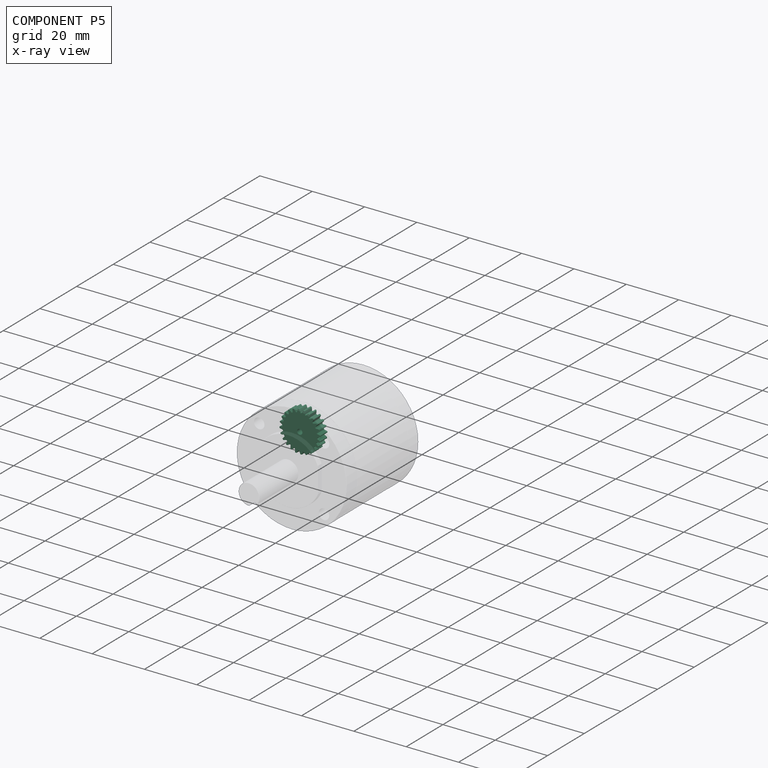
[diagram: component P5 — x-ray view]
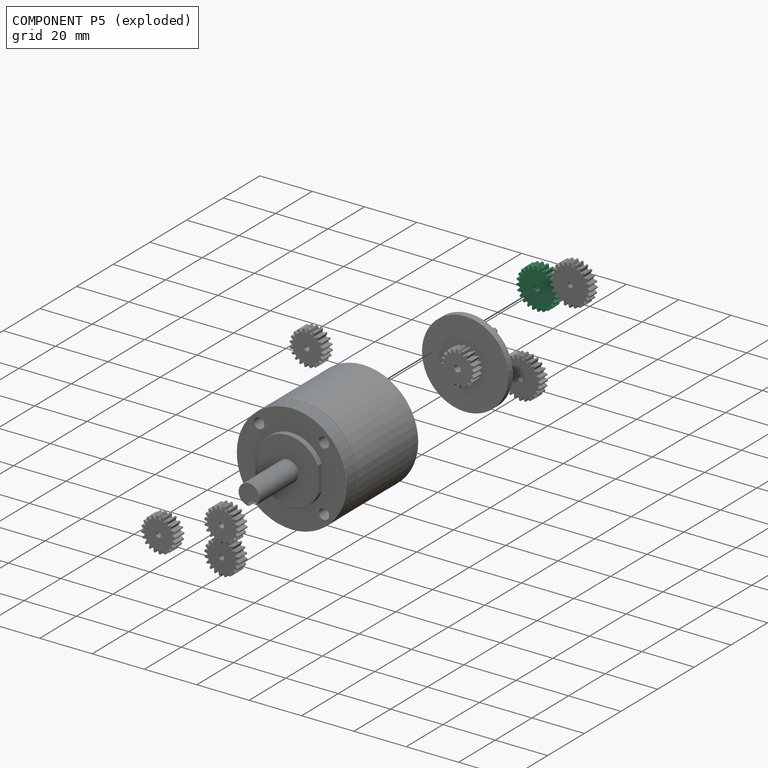
[diagram: component P5 — exploded]
COMPONENT P5 — same part as P3 (CADFS 00178055); its construction recipe is shown at P3.
Held by: REVOLUTE mate "Revolute 4" to P10.
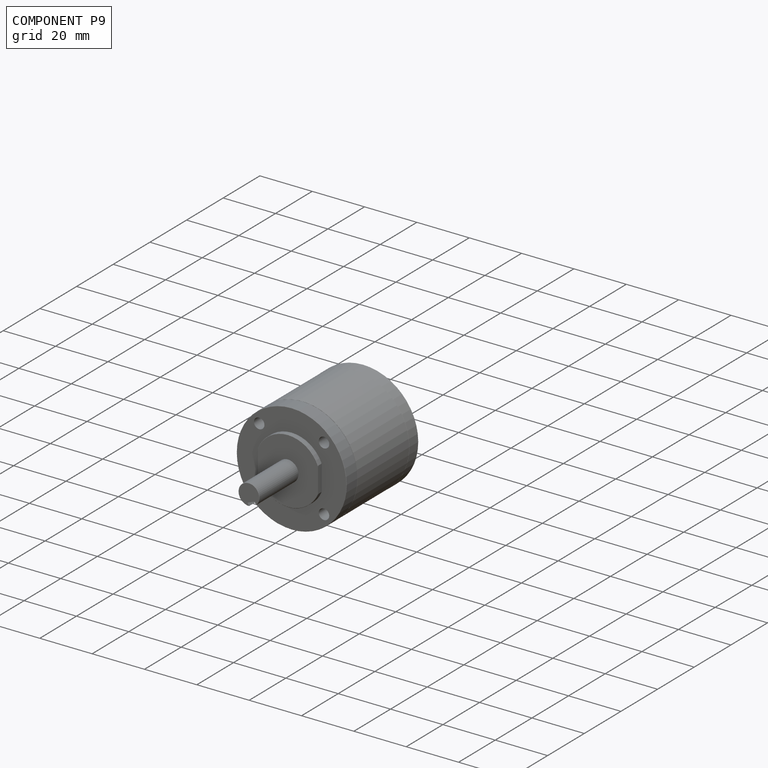
[diagram: component P9 — assembled]
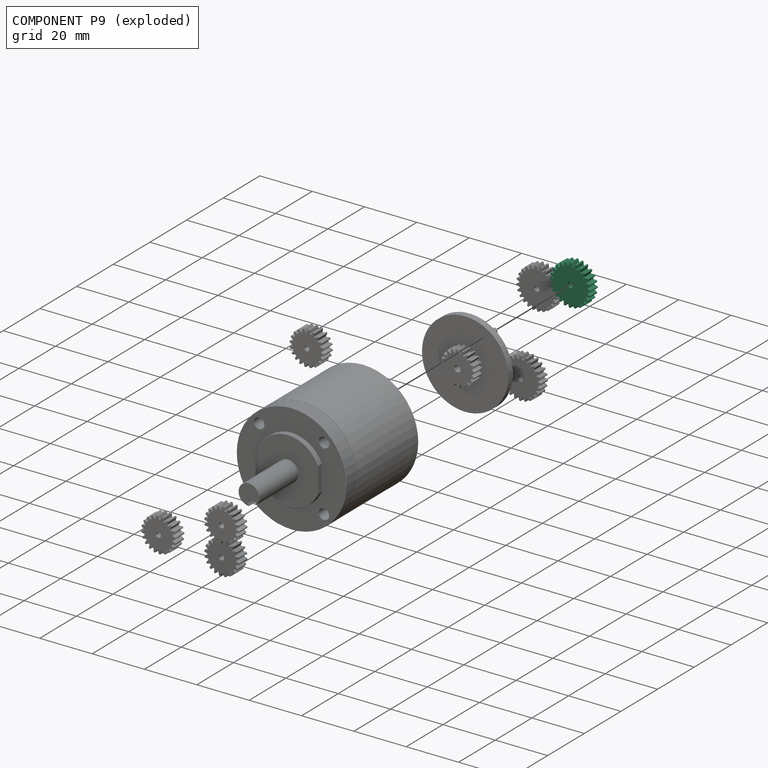
[diagram: component P9 — exploded]
COMPONENT P9 — same part as P3 (CADFS 00178055); its construction recipe is shown at P3.
Held by: REVOLUTE mate "Revolute 6" to P10.
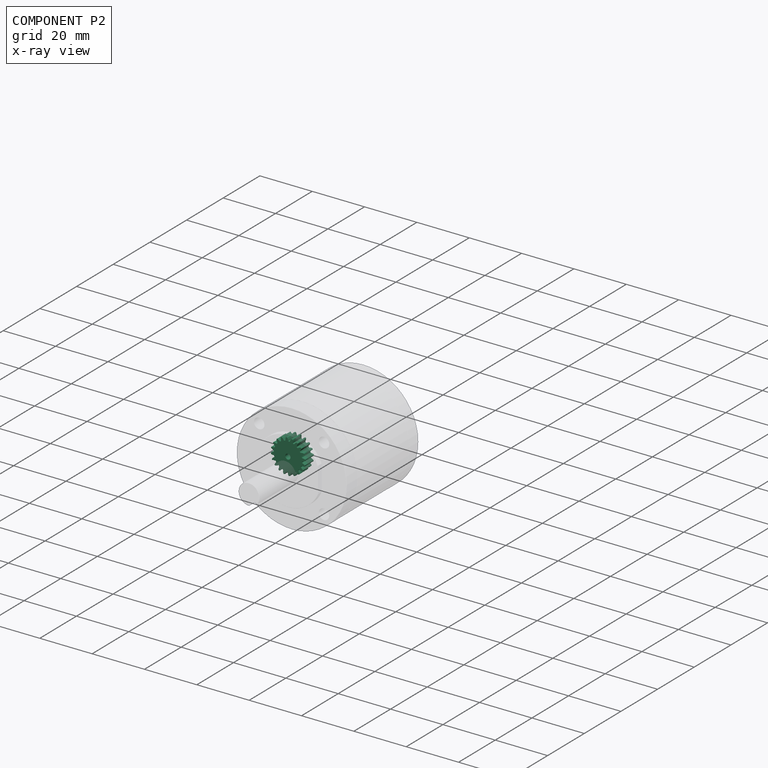
[diagram: component P2 — x-ray view]
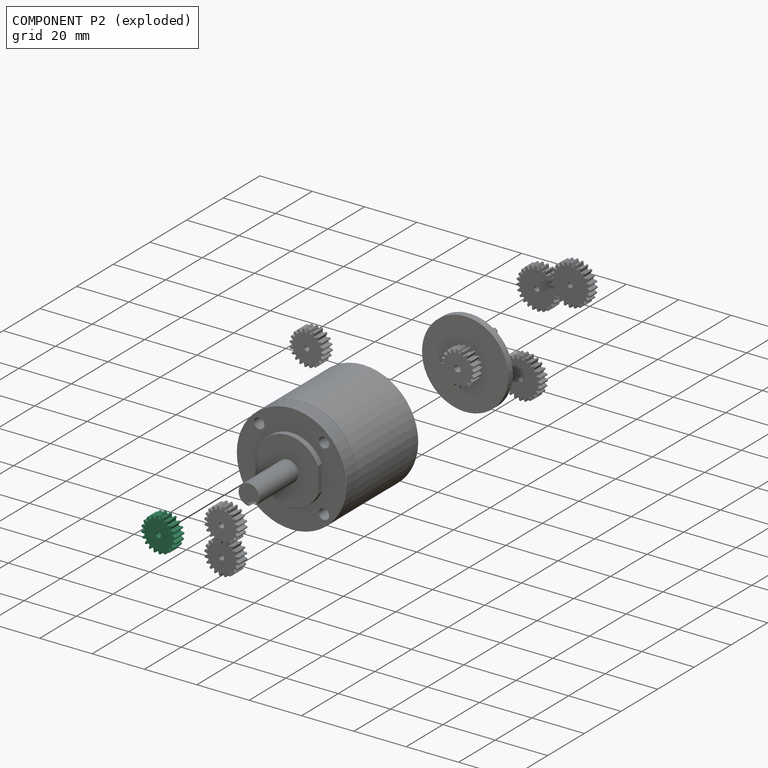
[diagram: component P2 — exploded]
COMPONENT P2 — recipe-attached (CADFS 00178052, mesh-verified: the recipe's output STEP matches this component's geometry to below the mesh-comparison resolution (tessellation chordal tolerance ~0.0289 mm)).
Held by: REVOLUTE mate "Revolute 1" to P0; PLANAR mate "Planar 1" to P10.
Construction recipe (FeatureScript — the CAD program that rebuilds this solid; sketch coordinates are in the units given by the * unit suffixes, e.g. mm):

FeatureScript 1540;
import(path : "onshape/std/geometry.fs", version : "1540.0");
import(path : "onshape/std/common.fs", version : "1540.0");
const mm = millimeter;
const VERTEX = EntityType.VERTEX;
const EDGE = EntityType.EDGE;
const FACE = EntityType.FACE;
const BODY = EntityType.BODY;
function v(x, y){return vector(x, y);}
function OD(order){return orderDisambiguation(order);}
function OSD(set){return originalSetDisambiguation(set);}
function TD(topology){return topologyDisambiguation(topology);}
function TDD(query){return trueDependencyDisambiguation(query);}
function sQuery(a, b, c) {return sketchEntityQuery(a, b, c);}

annotation { "Feature Type Name" : "Feature", "Feature Type Description" : "" }
export const myFeature = defineFeature(function(context is Context, id is Id, definition is map)
    precondition{}
    {
        {
            var Q0;
            Q0=qCreatedBy(makeId("Front.planeOp"),FACE);
            var sketch = newSketch(context, id + "F0", { "sketchPlane" : qUnion([Q0])});
            skCircle(sketch, "E0", {"center": v(0, 0) * mm, "radius": 6 * mm, "construction": true});
            skCircle(sketch, "E1", {"center": v(0, 0) * mm, "radius": 5.4 * mm, "construction": true});
            skCircle(sketch, "E2", {"center": v(0, 0) * mm, "radius": 6.6 * mm, "construction": true});
            skLineSegment(sketch, "E3", {"start": v(0, 0) * mm, "end": v(0, 7.77) * mm, "construction": true});
            skPoint(sketch, "E4", {"position": v(0, 6) * mm});
            skLineSegment(sketch, "E5", {"start": v(0, 6) * mm, "end": v(-7.8, 6) * mm, "construction": true});
            skCircle(sketch, "E6.cCircle", {"center": v(0, 0) * mm, "radius": 7.77 * mm, "construction": true});
            skLineSegment(sketch, "E6.0", {"start": v(-0.61, 7.77) * mm, "end": v(0.61, 7.77) * mm, "construction": true});
            skLineSegment(sketch, "E6.1", {"start": v(0.61, 7.77) * mm, "end": v(1.82, 7.58) * mm, "construction": true});
            skLineSegment(sketch, "E6.2", {"start": v(1.82, 7.58) * mm, "end": v(2.98, 7.2) * mm, "construction": true});
            skLineSegment(sketch, "E6.3", {"start": v(2.98, 7.2) * mm, "end": v(4.07, 6.65) * mm, "construction": true});
            skLineSegment(sketch, "E6.4", {"start": v(4.07, 6.65) * mm, "end": v(5.06, 5.93) * mm, "construction": true});
            skLineSegment(sketch, "E6.5", {"start": v(5.06, 5.93) * mm, "end": v(5.93, 5.06) * mm, "construction": true});
            skLineSegment(sketch, "E6.6", {"start": v(5.93, 5.06) * mm, "end": v(6.65, 4.07) * mm, "construction": true});
            skLineSegment(sketch, "E6.7", {"start": v(6.65, 4.07) * mm, "end": v(7.2, 2.98) * mm, "construction": true});
            skLineSegment(sketch, "E6.8", {"start": v(7.2, 2.98) * mm, "end": v(7.58, 1.82) * mm, "construction": true});
            skLineSegment(sketch, "E6.9", {"start": v(7.58, 1.82) * mm, "end": v(7.77, 0.61) * mm, "construction": true});
            skLineSegment(sketch, "E6.10", {"start": v(7.77, 0.61) * mm, "end": v(7.77, -0.61) * mm, "construction": true});
            skLineSegment(sketch, "E6.11", {"start": v(7.77, -0.61) * mm, "end": v(7.58, -1.82) * mm, "construction": true});
            skLineSegment(sketch, "E6.12", {"start": v(7.58, -1.82) * mm, "end": v(7.2, -2.98) * mm, "construction": true});
            skLineSegment(sketch, "E6.13", {"start": v(7.2, -2.98) * mm, "end": v(6.65, -4.07) * mm, "construction": true});
            skLineSegment(sketch, "E6.14", {"start": v(6.65, -4.07) * mm, "end": v(5.93, -5.06) * mm, "construction": true});
            skLineSegment(sketch, "E6.15", {"start": v(5.93, -5.06) * mm, "end": v(5.06, -5.93) * mm, "construction": true});
            skLineSegment(sketch, "E6.16", {"start": v(5.06, -5.93) * mm, "end": v(4.07, -6.65) * mm, "construction": true});
            skLineSegment(sketch, "E6.17", {"start": v(4.07, -6.65) * mm, "end": v(2.98, -7.2) * mm, "construction": true});
            skLineSegment(sketch, "E6.18", {"start": v(2.98, -7.2) * mm, "end": v(1.82, -7.58) * mm, "construction": true});
            skLineSegment(sketch, "E6.19", {"start": v(1.82, -7.58) * mm, "end": v(0.61, -7.77) * mm, "construction": true});
            skLineSegment(sketch, "E6.20", {"start": v(0.61, -7.77) * mm, "end": v(-0.61, -7.77) * mm, "construction": true});
            skLineSegment(sketch, "E6.21", {"start": v(-0.61, -7.77) * mm, "end": v(-1.82, -7.58) * mm, "construction": true});
            skLineSegment(sketch, "E6.22", {"start": v(-1.82, -7.58) * mm, "end": v(-2.98, -7.2) * mm, "construction": true});
            skLineSegment(sketch, "E6.23", {"start": v(-2.98, -7.2) * mm, "end": v(-4.07, -6.65) * mm, "construction": true});
            skLineSegment(sketch, "E6.24", {"start": v(-4.07, -6.65) * mm, "end": v(-5.06, -5.93) * mm, "construction": true});
            skLineSegment(sketch, "E6.25", {"start": v(-5.06, -5.93) * mm, "end": v(-5.93, -5.06) * mm, "construction": true});
            skLineSegment(sketch, "E6.26", {"start": v(-5.93, -5.06) * mm, "end": v(-6.65, -4.07) * mm, "construction": true});
            skLineSegment(sketch, "E6.27", {"start": v(-6.65, -4.07) * mm, "end": v(-7.2, -2.98) * mm, "construction": true});
            skLineSegment(sketch, "E6.28", {"start": v(-7.2, -2.98) * mm, "end": v(-7.58, -1.82) * mm, "construction": true});
            skLineSegment(sketch, "E6.29", {"start": v(-7.58, -1.82) * mm, "end": v(-7.77, -0.61) * mm, "construction": true});
            skLineSegment(sketch, "E6.30", {"start": v(-7.77, -0.61) * mm, "end": v(-7.77, 0.61) * mm, "construction": true});
            skLineSegment(sketch, "E6.31", {"start": v(-7.77, 0.61) * mm, "end": v(-7.58, 1.82) * mm, "construction": true});
            skLineSegment(sketch, "E6.32", {"start": v(-7.58, 1.82) * mm, "end": v(-7.2, 2.98) * mm, "construction": true});
            skLineSegment(sketch, "E6.33", {"start": v(-7.2, 2.98) * mm, "end": v(-6.65, 4.07) * mm, "construction": true});
            skLineSegment(sketch, "E6.34", {"start": v(-6.65, 4.07) * mm, "end": v(-5.93, 5.06) * mm, "construction": true});
            skLineSegment(sketch, "E6.35", {"start": v(-5.93, 5.06) * mm, "end": v(-5.06, 5.93) * mm, "construction": true});
            skLineSegment(sketch, "E6.36", {"start": v(-5.06, 5.93) * mm, "end": v(-4.07, 6.65) * mm, "construction": true});
            skLineSegment(sketch, "E6.37", {"start": v(-4.07, 6.65) * mm, "end": v(-2.98, 7.2) * mm, "construction": true});
            skLineSegment(sketch, "E6.38", {"start": v(-2.98, 7.2) * mm, "end": v(-1.82, 7.58) * mm, "construction": true});
            skLineSegment(sketch, "E6.39", {"start": v(-1.82, 7.58) * mm, "end": v(-0.61, 7.77) * mm, "construction": true});
            skPoint(sketch, "E6.0.midPoint", {"position": v(0, 7.77) * mm});
            skLineSegment(sketch, "E7.0", {"start": v(0, 7.77) * mm, "end": v(1.22, 7.68) * mm, "construction": true});
            skLineSegment(sketch, "E7.1", {"start": v(1.22, 7.68) * mm, "end": v(2.4, 7.4) * mm, "construction": true});
            skLineSegment(sketch, "E7.2", {"start": v(2.4, 7.4) * mm, "end": v(3.53, 6.93) * mm, "construction": true});
            skLineSegment(sketch, "E7.3", {"start": v(3.53, 6.93) * mm, "end": v(4.57, 6.29) * mm, "construction": true});
            skLineSegment(sketch, "E7.4", {"start": v(4.57, 6.29) * mm, "end": v(5.5, 5.5) * mm, "construction": true});
            skLineSegment(sketch, "E7.5", {"start": v(5.5, 5.5) * mm, "end": v(6.29, 4.57) * mm, "construction": true});
            skLineSegment(sketch, "E7.6", {"start": v(6.29, 4.57) * mm, "end": v(6.93, 3.53) * mm, "construction": true});
            skLineSegment(sketch, "E7.7", {"start": v(6.93, 3.53) * mm, "end": v(7.4, 2.4) * mm, "construction": true});
            skLineSegment(sketch, "E7.8", {"start": v(7.4, 2.4) * mm, "end": v(7.68, 1.22) * mm, "construction": true});
            skLineSegment(sketch, "E7.9", {"start": v(7.68, 1.22) * mm, "end": v(7.77, 0) * mm, "construction": true});
            skLineSegment(sketch, "E7.10", {"start": v(7.77, 0) * mm, "end": v(7.68, -1.22) * mm, "construction": true});
            skLineSegment(sketch, "E7.11", {"start": v(7.68, -1.22) * mm, "end": v(7.4, -2.4) * mm, "construction": true});
            skLineSegment(sketch, "E7.12", {"start": v(7.4, -2.4) * mm, "end": v(6.93, -3.53) * mm, "construction": true});
            skLineSegment(sketch, "E7.13", {"start": v(6.93, -3.53) * mm, "end": v(6.29, -4.57) * mm, "construction": true});
            skLineSegment(sketch, "E7.14", {"start": v(6.29, -4.57) * mm, "end": v(5.5, -5.5) * mm, "construction": true});
            skLineSegment(sketch, "E7.15", {"start": v(5.5, -5.5) * mm, "end": v(4.57, -6.29) * mm, "construction": true});
            skLineSegment(sketch, "E7.16", {"start": v(4.57, -6.29) * mm, "end": v(3.53, -6.93) * mm, "construction": true});
            skLineSegment(sketch, "E7.17", {"start": v(3.53, -6.93) * mm, "end": v(2.4, -7.4) * mm, "construction": true});
            skLineSegment(sketch, "E7.18", {"start": v(2.4, -7.4) * mm, "end": v(1.22, -7.68) * mm, "construction": true});
            skLineSegment(sketch, "E7.19", {"start": v(1.22, -7.68) * mm, "end": v(0, -7.77) * mm, "construction": true});
            skLineSegment(sketch, "E7.20", {"start": v(0, -7.77) * mm, "end": v(-1.22, -7.68) * mm, "construction": true});
            skLineSegment(sketch, "E7.21", {"start": v(-1.22, -7.68) * mm, "end": v(-2.4, -7.4) * mm, "construction": true});
            skLineSegment(sketch, "E7.22", {"start": v(-2.4, -7.4) * mm, "end": v(-3.53, -6.93) * mm, "construction": true});
            skLineSegment(sketch, "E7.23", {"start": v(-3.53, -6.93) * mm, "end": v(-4.57, -6.29) * mm, "construction": true});
            skLineSegment(sketch, "E7.24", {"start": v(-4.57, -6.29) * mm, "end": v(-5.5, -5.5) * mm, "construction": true});
            skLineSegment(sketch, "E7.25", {"start": v(-5.5, -5.5) * mm, "end": v(-6.29, -4.57) * mm, "construction": true});
            skLineSegment(sketch, "E7.26", {"start": v(-6.29, -4.57) * mm, "end": v(-6.93, -3.53) * mm, "construction": true});
            skLineSegment(sketch, "E7.27", {"start": v(-6.93, -3.53) * mm, "end": v(-7.4, -2.4) * mm, "construction": true});
            skLineSegment(sketch, "E7.28", {"start": v(-7.4, -2.4) * mm, "end": v(-7.68, -1.22) * mm, "construction": true});
            skLineSegment(sketch, "E7.29", {"start": v(-7.68, -1.22) * mm, "end": v(-7.77, 0) * mm, "construction": true});
            skLineSegment(sketch, "E7.30", {"start": v(-7.77, 0) * mm, "end": v(-7.68, 1.22) * mm, "construction": true});
            skLineSegment(sketch, "E7.31", {"start": v(-7.68, 1.22) * mm, "end": v(-7.4, 2.4) * mm, "construction": true});
            skLineSegment(sketch, "E7.32", {"start": v(-7.4, 2.4) * mm, "end": v(-6.93, 3.53) * mm, "construction": true});
            skLineSegment(sketch, "E7.33", {"start": v(-6.93, 3.53) * mm, "end": v(-6.29, 4.57) * mm, "construction": true});
            skLineSegment(sketch, "E7.34", {"start": v(-6.29, 4.57) * mm, "end": v(-5.5, 5.5) * mm, "construction": true});
            skLineSegment(sketch, "E7.35", {"start": v(-5.5, 5.5) * mm, "end": v(-4.57, 6.29) * mm, "construction": true});
            skLineSegment(sketch, "E7.36", {"start": v(-4.57, 6.29) * mm, "end": v(-3.53, 6.93) * mm, "construction": true});
            skLineSegment(sketch, "E7.37", {"start": v(-3.53, 6.93) * mm, "end": v(-2.4, 7.4) * mm, "construction": true});
            skLineSegment(sketch, "E7.38", {"start": v(-2.4, 7.4) * mm, "end": v(-1.22, 7.68) * mm, "construction": true});
            skLineSegment(sketch, "E7.39", {"start": v(-1.22, 7.68) * mm, "end": v(0, 7.77) * mm, "construction": true});
            skLineSegment(sketch, "E8", {"start": v(0, 0) * mm, "end": v(-0.61, 7.77) * mm, "construction": true});
            skLineSegment(sketch, "E9", {"start": v(0, 6) * mm, "end": v(-7.35, 3.32) * mm, "construction": true});
            skCircle(sketch, "E10", {"center": v(0, 6) * mm, "radius": 3.6 * mm, "construction": true});
            skPoint(sketch, "E11", {"position": v(-3.38, 4.77) * mm});
            skCircle(sketch, "E12", {"center": v(-3.38, 4.77) * mm, "radius": 3.6 * mm, "construction": true});
            skArc(sketch, "E13", {"start": v(-0.24, 6.53) * mm, "mid": v(0, 6.02) * mm, "end": v(0.14, 5.49) * mm});
            skArc(sketch, "E14.MirrorCS", {"start": v(-0.78, 6.49) * mm, "mid": v(-0.93, 5.95) * mm, "end": v(-1, 5.4) * mm});
            skArc(sketch, "E15", {"start": v(-0.68, 6.56) * mm, "mid": v(-0.52, 6.58) * mm, "end": v(-0.35, 6.6) * mm});
            skArc(sketch, "E16", {"start": v(-1.1, 5.29) * mm, "mid": v(0.42, -5.38) * mm, "end": v(0.26, 5.4) * mm});
            skPoint(sketch, "E17.visualSharp", {"position": v(-1, 5.3) * mm});
            skArc(sketch, "E17.filletArc", {"start": v(-1.1, 5.29) * mm, "mid": v(-1.03, 5.33) * mm, "end": v(-1, 5.4) * mm});
            skPoint(sketch, "E18.visualSharp", {"position": v(0.16, 5.4) * mm});
            skArc(sketch, "E18.filletArc", {"start": v(0.14, 5.49) * mm, "mid": v(0.18, 5.42) * mm, "end": v(0.26, 5.4) * mm});
            skPoint(sketch, "E19.visualSharp", {"position": v(-0.76, 6.56) * mm});
            skArc(sketch, "E19.filletArc", {"start": v(-0.68, 6.56) * mm, "mid": v(-0.74, 6.54) * mm, "end": v(-0.78, 6.49) * mm});
            skPoint(sketch, "E20.visualSharp", {"position": v(-0.28, 6.6) * mm});
            skArc(sketch, "E20.filletArc", {"start": v(-0.24, 6.53) * mm, "mid": v(-0.29, 6.58) * mm, "end": v(-0.35, 6.6) * mm});
            skLineSegment(sketch, "E21", {"start": v(0, 0) * mm, "end": v(-1.44, 6.92) * mm, "construction": true});
            skPoint(sketch, "E22.1.0", {"position": v(-1.51, 5.18) * mm});
            skPoint(sketch, "E22.1.1", {"position": v(-1.85, 5.7) * mm});
            skArc(sketch, "E22.1.2", {"start": v(-2.25, 6.13) * mm, "mid": v(-1.87, 5.73) * mm, "end": v(-1.56, 5.27) * mm});
            skArc(sketch, "E22.1.3", {"start": v(-2.68, 6.03) * mm, "mid": v(-2.53, 6.1) * mm, "end": v(-2.37, 6.16) * mm});
            skPoint(sketch, "E22.1.4", {"position": v(-2.3, 6.18) * mm});
            skPoint(sketch, "E22.1.5", {"position": v(-2.6, 4.74) * mm});
            skArc(sketch, "E22.1.6", {"start": v(-2.75, 5.93) * mm, "mid": v(-2.73, 5.37) * mm, "end": v(-2.62, 4.83) * mm});
            skPoint(sketch, "E22.1.7", {"position": v(-2.74, 6) * mm});
            skArc(sketch, "E22.1.8", {"start": v(-1.56, 5.27) * mm, "mid": v(-1.5, 5.21) * mm, "end": v(-1.42, 5.2) * mm});
            skArc(sketch, "E22.1.9", {"start": v(-2.68, 6.03) * mm, "mid": v(-2.73, 6) * mm, "end": v(-2.75, 5.93) * mm});
            skArc(sketch, "E22.1.10", {"start": v(-2.68, 4.69) * mm, "mid": v(-2.63, 4.75) * mm, "end": v(-2.62, 4.83) * mm});
            skArc(sketch, "E22.1.11", {"start": v(-2.25, 6.13) * mm, "mid": v(-2.3, 6.16) * mm, "end": v(-2.37, 6.16) * mm});
            skPoint(sketch, "E22.2.0", {"position": v(-3.04, 4.46) * mm});
            skPoint(sketch, "E22.2.1", {"position": v(-3.53, 4.85) * mm});
            skArc(sketch, "E22.2.2", {"start": v(-4.03, 5.14) * mm, "mid": v(-3.55, 4.87) * mm, "end": v(-3.11, 4.53) * mm});
            skArc(sketch, "E22.2.3", {"start": v(-4.4, 4.91) * mm, "mid": v(-4.29, 5.02) * mm, "end": v(-4.16, 5.12) * mm});
            skPoint(sketch, "E22.2.4", {"position": v(-4.1, 5.17) * mm});
            skPoint(sketch, "E22.2.5", {"position": v(-3.93, 3.7) * mm});
            skArc(sketch, "E22.2.6", {"start": v(-4.45, 4.79) * mm, "mid": v(-4.25, 4.27) * mm, "end": v(-3.98, 3.78) * mm});
            skPoint(sketch, "E22.2.7", {"position": v(-4.46, 4.86) * mm});
            skArc(sketch, "E22.2.8", {"start": v(-3.11, 4.53) * mm, "mid": v(-3.04, 4.5) * mm, "end": v(-2.96, 4.51) * mm});
            skArc(sketch, "E22.2.9", {"start": v(-4.4, 4.91) * mm, "mid": v(-4.45, 4.85) * mm, "end": v(-4.45, 4.79) * mm});
            skArc(sketch, "E22.2.10", {"start": v(-4, 3.63) * mm, "mid": v(-3.96, 3.7) * mm, "end": v(-3.98, 3.78) * mm});
            skArc(sketch, "E22.2.11", {"start": v(-4.03, 5.14) * mm, "mid": v(-4.1, 5.15) * mm, "end": v(-4.16, 5.12) * mm});
            skPoint(sketch, "E22.3.0", {"position": v(-4.27, 3.3) * mm});
            skPoint(sketch, "E22.3.1", {"position": v(-4.85, 3.53) * mm});
            skArc(sketch, "E22.3.2", {"start": v(-5.43, 3.64) * mm, "mid": v(-4.88, 3.53) * mm, "end": v(-4.36, 3.34) * mm});
            skArc(sketch, "E22.3.3", {"start": v(-5.71, 3.3) * mm, "mid": v(-5.63, 3.45) * mm, "end": v(-5.54, 3.59) * mm});
            skPoint(sketch, "E22.3.4", {"position": v(-5.5, 3.65) * mm});
            skPoint(sketch, "E22.3.5", {"position": v(-4.88, 2.3) * mm});
            skArc(sketch, "E22.3.6", {"start": v(-5.7, 3.18) * mm, "mid": v(-5.36, 2.74) * mm, "end": v(-4.96, 2.36) * mm});
            skPoint(sketch, "E22.3.7", {"position": v(-5.75, 3.24) * mm});
            skArc(sketch, "E22.3.8", {"start": v(-4.36, 3.34) * mm, "mid": v(-4.28, 3.34) * mm, "end": v(-4.21, 3.38) * mm});
            skArc(sketch, "E22.3.9", {"start": v(-5.71, 3.3) * mm, "mid": v(-5.73, 3.24) * mm, "end": v(-5.7, 3.18) * mm});
            skArc(sketch, "E22.3.10", {"start": v(-4.92, 2.22) * mm, "mid": v(-4.92, 2.3) * mm, "end": v(-4.96, 2.36) * mm});
            skArc(sketch, "E22.3.11", {"start": v(-5.43, 3.64) * mm, "mid": v(-5.5, 3.63) * mm, "end": v(-5.54, 3.59) * mm});
            skPoint(sketch, "E22.4.0", {"position": v(-5.08, 1.82) * mm});
            skPoint(sketch, "E22.4.1", {"position": v(-5.7, 1.85) * mm});
            skArc(sketch, "E22.4.2", {"start": v(-6.28, 1.79) * mm, "mid": v(-5.73, 1.85) * mm, "end": v(-5.18, 1.83) * mm});
            skArc(sketch, "E22.4.3", {"start": v(-6.45, 1.38) * mm, "mid": v(-6.42, 1.54) * mm, "end": v(-6.38, 1.7) * mm});
            skPoint(sketch, "E22.4.4", {"position": v(-6.36, 1.77) * mm});
            skPoint(sketch, "E22.4.5", {"position": v(-5.36, 0.68) * mm});
            skArc(sketch, "E22.4.6", {"start": v(-6.41, 1.26) * mm, "mid": v(-5.95, 0.95) * mm, "end": v(-5.44, 0.72) * mm});
            skPoint(sketch, "E22.4.7", {"position": v(-6.47, 1.3) * mm});
            skArc(sketch, "E22.4.8", {"start": v(-5.18, 1.83) * mm, "mid": v(-5.1, 1.85) * mm, "end": v(-5.05, 1.91) * mm});
            skArc(sketch, "E22.4.9", {"start": v(-6.45, 1.38) * mm, "mid": v(-6.45, 1.31) * mm, "end": v(-6.41, 1.26) * mm});
            skArc(sketch, "E22.4.10", {"start": v(-5.37, 0.6) * mm, "mid": v(-5.38, 0.67) * mm, "end": v(-5.44, 0.72) * mm});
            skArc(sketch, "E22.4.11", {"start": v(-6.28, 1.79) * mm, "mid": v(-6.34, 1.76) * mm, "end": v(-6.38, 1.7) * mm});
            skPoint(sketch, "E22.5.0", {"position": v(-5.4, 0.16) * mm});
            skPoint(sketch, "E22.5.1", {"position": v(-6, 0) * mm});
            skArc(sketch, "E22.5.2", {"start": v(-6.53, -0.24) * mm, "mid": v(-6.02, 0) * mm, "end": v(-5.49, 0.14) * mm});
            skArc(sketch, "E22.5.3", {"start": v(-6.56, -0.68) * mm, "mid": v(-6.58, -0.52) * mm, "end": v(-6.6, -0.35) * mm});
            skPoint(sketch, "E22.5.4", {"position": v(-6.6, -0.28) * mm});
            skPoint(sketch, "E22.5.5", {"position": v(-5.3, -1) * mm});
            skArc(sketch, "E22.5.6", {"start": v(-6.49, -0.78) * mm, "mid": v(-5.95, -0.93) * mm, "end": v(-5.4, -1) * mm});
            skPoint(sketch, "E22.5.7", {"position": v(-6.56, -0.76) * mm});
            skArc(sketch, "E22.5.8", {"start": v(-5.49, 0.14) * mm, "mid": v(-5.42, 0.18) * mm, "end": v(-5.4, 0.26) * mm});
            skArc(sketch, "E22.5.9", {"start": v(-6.56, -0.68) * mm, "mid": v(-6.54, -0.74) * mm, "end": v(-6.49, -0.78) * mm});
            skArc(sketch, "E22.5.10", {"start": v(-5.29, -1.1) * mm, "mid": v(-5.33, -1.03) * mm, "end": v(-5.4, -1) * mm});
            skArc(sketch, "E22.5.11", {"start": v(-6.53, -0.24) * mm, "mid": v(-6.58, -0.29) * mm, "end": v(-6.6, -0.35) * mm});
            skPoint(sketch, "E22.6.0", {"position": v(-5.18, -1.51) * mm});
            skPoint(sketch, "E22.6.1", {"position": v(-5.7, -1.85) * mm});
            skArc(sketch, "E22.6.2", {"start": v(-6.13, -2.25) * mm, "mid": v(-5.73, -1.87) * mm, "end": v(-5.27, -1.56) * mm});
            skArc(sketch, "E22.6.3", {"start": v(-6.03, -2.68) * mm, "mid": v(-6.1, -2.53) * mm, "end": v(-6.16, -2.37) * mm});
            skPoint(sketch, "E22.6.4", {"position": v(-6.18, -2.3) * mm});
            skPoint(sketch, "E22.6.5", {"position": v(-4.74, -2.6) * mm});
            skArc(sketch, "E22.6.6", {"start": v(-5.93, -2.75) * mm, "mid": v(-5.37, -2.73) * mm, "end": v(-4.83, -2.62) * mm});
            skPoint(sketch, "E22.6.7", {"position": v(-6, -2.74) * mm});
            skArc(sketch, "E22.6.8", {"start": v(-5.27, -1.56) * mm, "mid": v(-5.21, -1.5) * mm, "end": v(-5.2, -1.42) * mm});
            skArc(sketch, "E22.6.9", {"start": v(-6.03, -2.68) * mm, "mid": v(-6, -2.73) * mm, "end": v(-5.93, -2.75) * mm});
            skArc(sketch, "E22.6.10", {"start": v(-4.69, -2.68) * mm, "mid": v(-4.75, -2.63) * mm, "end": v(-4.83, -2.62) * mm});
            skArc(sketch, "E22.6.11", {"start": v(-6.13, -2.25) * mm, "mid": v(-6.16, -2.3) * mm, "end": v(-6.16, -2.37) * mm});
            skPoint(sketch, "E22.7.0", {"position": v(-4.46, -3.04) * mm});
            skPoint(sketch, "E22.7.1", {"position": v(-4.85, -3.53) * mm});
            skArc(sketch, "E22.7.2", {"start": v(-5.14, -4.03) * mm, "mid": v(-4.87, -3.55) * mm, "end": v(-4.53, -3.11) * mm});
            skArc(sketch, "E22.7.3", {"start": v(-4.91, -4.4) * mm, "mid": v(-5.02, -4.29) * mm, "end": v(-5.12, -4.16) * mm});
            skPoint(sketch, "E22.7.4", {"position": v(-5.17, -4.1) * mm});
            skPoint(sketch, "E22.7.5", {"position": v(-3.7, -3.93) * mm});
            skArc(sketch, "E22.7.6", {"start": v(-4.79, -4.45) * mm, "mid": v(-4.27, -4.25) * mm, "end": v(-3.78, -3.98) * mm});
            skPoint(sketch, "E22.7.7", {"position": v(-4.86, -4.46) * mm});
            skArc(sketch, "E22.7.8", {"start": v(-4.53, -3.11) * mm, "mid": v(-4.5, -3.04) * mm, "end": v(-4.51, -2.96) * mm});
            skArc(sketch, "E22.7.9", {"start": v(-4.91, -4.4) * mm, "mid": v(-4.85, -4.45) * mm, "end": v(-4.79, -4.45) * mm});
            skArc(sketch, "E22.7.10", {"start": v(-3.63, -4) * mm, "mid": v(-3.7, -3.96) * mm, "end": v(-3.78, -3.98) * mm});
            skArc(sketch, "E22.7.11", {"start": v(-5.14, -4.03) * mm, "mid": v(-5.15, -4.1) * mm, "end": v(-5.12, -4.16) * mm});
            skPoint(sketch, "E22.8.0", {"position": v(-3.3, -4.27) * mm});
            skPoint(sketch, "E22.8.1", {"position": v(-3.53, -4.85) * mm});
            skArc(sketch, "E22.8.2", {"start": v(-3.64, -5.43) * mm, "mid": v(-3.53, -4.88) * mm, "end": v(-3.34, -4.36) * mm});
            skArc(sketch, "E22.8.3", {"start": v(-3.3, -5.71) * mm, "mid": v(-3.45, -5.63) * mm, "end": v(-3.59, -5.54) * mm});
            skPoint(sketch, "E22.8.4", {"position": v(-3.65, -5.5) * mm});
            skPoint(sketch, "E22.8.5", {"position": v(-2.3, -4.88) * mm});
            skArc(sketch, "E22.8.6", {"start": v(-3.18, -5.7) * mm, "mid": v(-2.74, -5.36) * mm, "end": v(-2.36, -4.96) * mm});
            skPoint(sketch, "E22.8.7", {"position": v(-3.24, -5.75) * mm});
            skArc(sketch, "E22.8.8", {"start": v(-3.34, -4.36) * mm, "mid": v(-3.34, -4.28) * mm, "end": v(-3.38, -4.21) * mm});
            skArc(sketch, "E22.8.9", {"start": v(-3.3, -5.71) * mm, "mid": v(-3.24, -5.73) * mm, "end": v(-3.18, -5.7) * mm});
            skArc(sketch, "E22.8.10", {"start": v(-2.22, -4.92) * mm, "mid": v(-2.3, -4.92) * mm, "end": v(-2.36, -4.96) * mm});
            skArc(sketch, "E22.8.11", {"start": v(-3.64, -5.43) * mm, "mid": v(-3.63, -5.5) * mm, "end": v(-3.59, -5.54) * mm});
            skPoint(sketch, "E22.9.0", {"position": v(-1.82, -5.08) * mm});
            skPoint(sketch, "E22.9.1", {"position": v(-1.85, -5.7) * mm});
            skArc(sketch, "E22.9.2", {"start": v(-1.79, -6.28) * mm, "mid": v(-1.85, -5.73) * mm, "end": v(-1.83, -5.18) * mm});
            skArc(sketch, "E22.9.3", {"start": v(-1.38, -6.45) * mm, "mid": v(-1.54, -6.42) * mm, "end": v(-1.7, -6.38) * mm});
            skPoint(sketch, "E22.9.4", {"position": v(-1.77, -6.36) * mm});
            skPoint(sketch, "E22.9.5", {"position": v(-0.68, -5.36) * mm});
            skArc(sketch, "E22.9.6", {"start": v(-1.26, -6.41) * mm, "mid": v(-0.95, -5.95) * mm, "end": v(-0.72, -5.44) * mm});
            skPoint(sketch, "E22.9.7", {"position": v(-1.3, -6.47) * mm});
            skArc(sketch, "E22.9.8", {"start": v(-1.83, -5.18) * mm, "mid": v(-1.85, -5.1) * mm, "end": v(-1.91, -5.05) * mm});
            skArc(sketch, "E22.9.9", {"start": v(-1.38, -6.45) * mm, "mid": v(-1.31, -6.45) * mm, "end": v(-1.26, -6.41) * mm});
            skArc(sketch, "E22.9.10", {"start": v(-0.6, -5.37) * mm, "mid": v(-0.67, -5.38) * mm, "end": v(-0.72, -5.44) * mm});
            skArc(sketch, "E22.9.11", {"start": v(-1.79, -6.28) * mm, "mid": v(-1.76, -6.34) * mm, "end": v(-1.7, -6.38) * mm});
            skPoint(sketch, "E22.10.0", {"position": v(-0.16, -5.4) * mm});
            skPoint(sketch, "E22.10.1", {"position": v(0, -6) * mm});
            skArc(sketch, "E22.10.2", {"start": v(0.24, -6.53) * mm, "mid": v(0, -6.02) * mm, "end": v(-0.14, -5.49) * mm});
            skArc(sketch, "E22.10.3", {"start": v(0.68, -6.56) * mm, "mid": v(0.52, -6.58) * mm, "end": v(0.35, -6.6) * mm});
            skPoint(sketch, "E22.10.4", {"position": v(0.28, -6.6) * mm});
            skPoint(sketch, "E22.10.5", {"position": v(1, -5.3) * mm});
            skArc(sketch, "E22.10.6", {"start": v(0.78, -6.49) * mm, "mid": v(0.93, -5.95) * mm, "end": v(1, -5.4) * mm});
            skPoint(sketch, "E22.10.7", {"position": v(0.76, -6.56) * mm});
            skArc(sketch, "E22.10.8", {"start": v(-0.14, -5.49) * mm, "mid": v(-0.18, -5.42) * mm, "end": v(-0.26, -5.4) * mm});
            skArc(sketch, "E22.10.9", {"start": v(0.68, -6.56) * mm, "mid": v(0.74, -6.54) * mm, "end": v(0.78, -6.49) * mm});
            skArc(sketch, "E22.10.10", {"start": v(1.1, -5.29) * mm, "mid": v(1.03, -5.33) * mm, "end": v(1, -5.4) * mm});
            skArc(sketch, "E22.10.11", {"start": v(0.24, -6.53) * mm, "mid": v(0.29, -6.58) * mm, "end": v(0.35, -6.6) * mm});
            skPoint(sketch, "E22.11.0", {"position": v(1.51, -5.18) * mm});
            skPoint(sketch, "E22.11.1", {"position": v(1.85, -5.7) * mm});
            skArc(sketch, "E22.11.2", {"start": v(2.25, -6.13) * mm, "mid": v(1.87, -5.73) * mm, "end": v(1.56, -5.27) * mm});
            skArc(sketch, "E22.11.3", {"start": v(2.68, -6.03) * mm, "mid": v(2.53, -6.1) * mm, "end": v(2.37, -6.16) * mm});
            skPoint(sketch, "E22.11.4", {"position": v(2.3, -6.18) * mm});
            skPoint(sketch, "E22.11.5", {"position": v(2.6, -4.74) * mm});
            skArc(sketch, "E22.11.6", {"start": v(2.75, -5.93) * mm, "mid": v(2.73, -5.37) * mm, "end": v(2.62, -4.83) * mm});
            skPoint(sketch, "E22.11.7", {"position": v(2.74, -6) * mm});
            skArc(sketch, "E22.11.8", {"start": v(1.56, -5.27) * mm, "mid": v(1.5, -5.21) * mm, "end": v(1.42, -5.2) * mm});
            skArc(sketch, "E22.11.9", {"start": v(2.68, -6.03) * mm, "mid": v(2.73, -6) * mm, "end": v(2.75, -5.93) * mm});
            skArc(sketch, "E22.11.10", {"start": v(2.68, -4.69) * mm, "mid": v(2.63, -4.75) * mm, "end": v(2.62, -4.83) * mm});
            skArc(sketch, "E22.11.11", {"start": v(2.25, -6.13) * mm, "mid": v(2.3, -6.16) * mm, "end": v(2.37, -6.16) * mm});
            skPoint(sketch, "E22.12.0", {"position": v(3.04, -4.46) * mm});
            skPoint(sketch, "E22.12.1", {"position": v(3.53, -4.85) * mm});
            skArc(sketch, "E22.12.2", {"start": v(4.03, -5.14) * mm, "mid": v(3.55, -4.87) * mm, "end": v(3.11, -4.53) * mm});
            skArc(sketch, "E22.12.3", {"start": v(4.4, -4.91) * mm, "mid": v(4.29, -5.02) * mm, "end": v(4.16, -5.12) * mm});
            skPoint(sketch, "E22.12.4", {"position": v(4.1, -5.17) * mm});
            skPoint(sketch, "E22.12.5", {"position": v(3.93, -3.7) * mm});
            skArc(sketch, "E22.12.6", {"start": v(4.45, -4.79) * mm, "mid": v(4.25, -4.27) * mm, "end": v(3.98, -3.78) * mm});
            skPoint(sketch, "E22.12.7", {"position": v(4.46, -4.86) * mm});
            skArc(sketch, "E22.12.8", {"start": v(3.11, -4.53) * mm, "mid": v(3.04, -4.5) * mm, "end": v(2.96, -4.51) * mm});
            skArc(sketch, "E22.12.9", {"start": v(4.4, -4.91) * mm, "mid": v(4.45, -4.85) * mm, "end": v(4.45, -4.79) * mm});
            skArc(sketch, "E22.12.10", {"start": v(4, -3.63) * mm, "mid": v(3.96, -3.7) * mm, "end": v(3.98, -3.78) * mm});
            skArc(sketch, "E22.12.11", {"start": v(4.03, -5.14) * mm, "mid": v(4.1, -5.15) * mm, "end": v(4.16, -5.12) * mm});
            skPoint(sketch, "E22.13.0", {"position": v(4.27, -3.3) * mm});
            skPoint(sketch, "E22.13.1", {"position": v(4.85, -3.53) * mm});
            skArc(sketch, "E22.13.2", {"start": v(5.43, -3.64) * mm, "mid": v(4.88, -3.53) * mm, "end": v(4.36, -3.34) * mm});
            skArc(sketch, "E22.13.3", {"start": v(5.71, -3.3) * mm, "mid": v(5.63, -3.45) * mm, "end": v(5.54, -3.59) * mm});
            skPoint(sketch, "E22.13.4", {"position": v(5.5, -3.65) * mm});
            skPoint(sketch, "E22.13.5", {"position": v(4.88, -2.3) * mm});
            skArc(sketch, "E22.13.6", {"start": v(5.7, -3.18) * mm, "mid": v(5.36, -2.74) * mm, "end": v(4.96, -2.36) * mm});
            skPoint(sketch, "E22.13.7", {"position": v(5.75, -3.24) * mm});
            skArc(sketch, "E22.13.8", {"start": v(4.36, -3.34) * mm, "mid": v(4.28, -3.34) * mm, "end": v(4.21, -3.38) * mm});
            skArc(sketch, "E22.13.9", {"start": v(5.71, -3.3) * mm, "mid": v(5.73, -3.24) * mm, "end": v(5.7, -3.18) * mm});
            skArc(sketch, "E22.13.10", {"start": v(4.92, -2.22) * mm, "mid": v(4.92, -2.3) * mm, "end": v(4.96, -2.36) * mm});
            skArc(sketch, "E22.13.11", {"start": v(5.43, -3.64) * mm, "mid": v(5.5, -3.63) * mm, "end": v(5.54, -3.59) * mm});
            skPoint(sketch, "E22.14.0", {"position": v(5.08, -1.82) * mm});
            skPoint(sketch, "E22.14.1", {"position": v(5.7, -1.85) * mm});
            skArc(sketch, "E22.14.2", {"start": v(6.28, -1.79) * mm, "mid": v(5.73, -1.85) * mm, "end": v(5.18, -1.83) * mm});
            skArc(sketch, "E22.14.3", {"start": v(6.45, -1.38) * mm, "mid": v(6.42, -1.54) * mm, "end": v(6.38, -1.7) * mm});
            skPoint(sketch, "E22.14.4", {"position": v(6.36, -1.77) * mm});
            skPoint(sketch, "E22.14.5", {"position": v(5.36, -0.68) * mm});
            skArc(sketch, "E22.14.6", {"start": v(6.41, -1.26) * mm, "mid": v(5.95, -0.95) * mm, "end": v(5.44, -0.72) * mm});
            skPoint(sketch, "E22.14.7", {"position": v(6.47, -1.3) * mm});
            skArc(sketch, "E22.14.8", {"start": v(5.18, -1.83) * mm, "mid": v(5.1, -1.85) * mm, "end": v(5.05, -1.91) * mm});
            skArc(sketch, "E22.14.9", {"start": v(6.45, -1.38) * mm, "mid": v(6.45, -1.31) * mm, "end": v(6.41, -1.26) * mm});
            skArc(sketch, "E22.14.10", {"start": v(5.37, -0.6) * mm, "mid": v(5.38, -0.67) * mm, "end": v(5.44, -0.72) * mm});
            skArc(sketch, "E22.14.11", {"start": v(6.28, -1.79) * mm, "mid": v(6.34, -1.76) * mm, "end": v(6.38, -1.7) * mm});
            skPoint(sketch, "E22.15.0", {"position": v(5.4, -0.16) * mm});
            skPoint(sketch, "E22.15.1", {"position": v(6, 0) * mm});
            skArc(sketch, "E22.15.2", {"start": v(6.53, 0.24) * mm, "mid": v(6.02, 0) * mm, "end": v(5.49, -0.14) * mm});
            skArc(sketch, "E22.15.3", {"start": v(6.56, 0.68) * mm, "mid": v(6.58, 0.52) * mm, "end": v(6.6, 0.35) * mm});
            skPoint(sketch, "E22.15.4", {"position": v(6.6, 0.28) * mm});
            skPoint(sketch, "E22.15.5", {"position": v(5.3, 1) * mm});
            skArc(sketch, "E22.15.6", {"start": v(6.49, 0.78) * mm, "mid": v(5.95, 0.93) * mm, "end": v(5.4, 1) * mm});
            skPoint(sketch, "E22.15.7", {"position": v(6.56, 0.76) * mm});
            skArc(sketch, "E22.15.8", {"start": v(5.49, -0.14) * mm, "mid": v(5.42, -0.18) * mm, "end": v(5.4, -0.26) * mm});
            skArc(sketch, "E22.15.9", {"start": v(6.56, 0.68) * mm, "mid": v(6.54, 0.74) * mm, "end": v(6.49, 0.78) * mm});
            skArc(sketch, "E22.15.10", {"start": v(5.29, 1.1) * mm, "mid": v(5.33, 1.03) * mm, "end": v(5.4, 1) * mm});
            skArc(sketch, "E22.15.11", {"start": v(6.53, 0.24) * mm, "mid": v(6.58, 0.29) * mm, "end": v(6.6, 0.35) * mm});
            skPoint(sketch, "E22.16.0", {"position": v(5.18, 1.51) * mm});
            skPoint(sketch, "E22.16.1", {"position": v(5.7, 1.85) * mm});
            skArc(sketch, "E22.16.2", {"start": v(6.13, 2.25) * mm, "mid": v(5.73, 1.87) * mm, "end": v(5.27, 1.56) * mm});
            skArc(sketch, "E22.16.3", {"start": v(6.03, 2.68) * mm, "mid": v(6.1, 2.53) * mm, "end": v(6.16, 2.37) * mm});
            skPoint(sketch, "E22.16.4", {"position": v(6.18, 2.3) * mm});
            skPoint(sketch, "E22.16.5", {"position": v(4.74, 2.6) * mm});
            skArc(sketch, "E22.16.6", {"start": v(5.93, 2.75) * mm, "mid": v(5.37, 2.73) * mm, "end": v(4.83, 2.62) * mm});
            skPoint(sketch, "E22.16.7", {"position": v(6, 2.74) * mm});
            skArc(sketch, "E22.16.8", {"start": v(5.27, 1.56) * mm, "mid": v(5.21, 1.5) * mm, "end": v(5.2, 1.42) * mm});
            skArc(sketch, "E22.16.9", {"start": v(6.03, 2.68) * mm, "mid": v(6, 2.73) * mm, "end": v(5.93, 2.75) * mm});
            skArc(sketch, "E22.16.10", {"start": v(4.69, 2.68) * mm, "mid": v(4.75, 2.63) * mm, "end": v(4.83, 2.62) * mm});
            skArc(sketch, "E22.16.11", {"start": v(6.13, 2.25) * mm, "mid": v(6.16, 2.3) * mm, "end": v(6.16, 2.37) * mm});
            skPoint(sketch, "E22.17.0", {"position": v(4.46, 3.04) * mm});
            skPoint(sketch, "E22.17.1", {"position": v(4.85, 3.53) * mm});
            skArc(sketch, "E22.17.2", {"start": v(5.14, 4.03) * mm, "mid": v(4.87, 3.55) * mm, "end": v(4.53, 3.11) * mm});
            skArc(sketch, "E22.17.3", {"start": v(4.91, 4.4) * mm, "mid": v(5.02, 4.29) * mm, "end": v(5.12, 4.16) * mm});
            skPoint(sketch, "E22.17.4", {"position": v(5.17, 4.1) * mm});
            skPoint(sketch, "E22.17.5", {"position": v(3.7, 3.93) * mm});
            skArc(sketch, "E22.17.6", {"start": v(4.79, 4.45) * mm, "mid": v(4.27, 4.25) * mm, "end": v(3.78, 3.98) * mm});
            skPoint(sketch, "E22.17.7", {"position": v(4.86, 4.46) * mm});
            skArc(sketch, "E22.17.8", {"start": v(4.53, 3.11) * mm, "mid": v(4.5, 3.04) * mm, "end": v(4.51, 2.96) * mm});
            skArc(sketch, "E22.17.9", {"start": v(4.91, 4.4) * mm, "mid": v(4.85, 4.45) * mm, "end": v(4.79, 4.45) * mm});
            skArc(sketch, "E22.17.10", {"start": v(3.63, 4) * mm, "mid": v(3.7, 3.96) * mm, "end": v(3.78, 3.98) * mm});
            skArc(sketch, "E22.17.11", {"start": v(5.14, 4.03) * mm, "mid": v(5.15, 4.1) * mm, "end": v(5.12, 4.16) * mm});
            skPoint(sketch, "E22.18.0", {"position": v(3.3, 4.27) * mm});
            skPoint(sketch, "E22.18.1", {"position": v(3.53, 4.85) * mm});
            skArc(sketch, "E22.18.2", {"start": v(3.64, 5.43) * mm, "mid": v(3.53, 4.88) * mm, "end": v(3.34, 4.36) * mm});
            skArc(sketch, "E22.18.3", {"start": v(3.3, 5.71) * mm, "mid": v(3.45, 5.63) * mm, "end": v(3.59, 5.54) * mm});
            skPoint(sketch, "E22.18.4", {"position": v(3.65, 5.5) * mm});
            skPoint(sketch, "E22.18.5", {"position": v(2.3, 4.88) * mm});
            skArc(sketch, "E22.18.6", {"start": v(3.18, 5.7) * mm, "mid": v(2.74, 5.36) * mm, "end": v(2.36, 4.96) * mm});
            skPoint(sketch, "E22.18.7", {"position": v(3.24, 5.75) * mm});
            skArc(sketch, "E22.18.8", {"start": v(3.34, 4.36) * mm, "mid": v(3.34, 4.28) * mm, "end": v(3.38, 4.21) * mm});
            skArc(sketch, "E22.18.9", {"start": v(3.3, 5.71) * mm, "mid": v(3.24, 5.73) * mm, "end": v(3.18, 5.7) * mm});
            skArc(sketch, "E22.18.10", {"start": v(2.22, 4.92) * mm, "mid": v(2.3, 4.92) * mm, "end": v(2.36, 4.96) * mm});
            skArc(sketch, "E22.18.11", {"start": v(3.64, 5.43) * mm, "mid": v(3.63, 5.5) * mm, "end": v(3.59, 5.54) * mm});
            skPoint(sketch, "E22.19.0", {"position": v(1.82, 5.08) * mm});
            skPoint(sketch, "E22.19.1", {"position": v(1.85, 5.7) * mm});
            skArc(sketch, "E22.19.2", {"start": v(1.79, 6.28) * mm, "mid": v(1.85, 5.73) * mm, "end": v(1.83, 5.18) * mm});
            skArc(sketch, "E22.19.3", {"start": v(1.38, 6.45) * mm, "mid": v(1.54, 6.42) * mm, "end": v(1.7, 6.38) * mm});
            skPoint(sketch, "E22.19.4", {"position": v(1.77, 6.36) * mm});
            skPoint(sketch, "E22.19.5", {"position": v(0.68, 5.36) * mm});
            skArc(sketch, "E22.19.6", {"start": v(1.26, 6.41) * mm, "mid": v(0.95, 5.95) * mm, "end": v(0.72, 5.44) * mm});
            skPoint(sketch, "E22.19.7", {"position": v(1.3, 6.47) * mm});
            skArc(sketch, "E22.19.8", {"start": v(1.83, 5.18) * mm, "mid": v(1.85, 5.1) * mm, "end": v(1.91, 5.05) * mm});
            skArc(sketch, "E22.19.9", {"start": v(1.38, 6.45) * mm, "mid": v(1.31, 6.45) * mm, "end": v(1.26, 6.41) * mm});
            skArc(sketch, "E22.19.10", {"start": v(0.6, 5.37) * mm, "mid": v(0.67, 5.38) * mm, "end": v(0.72, 5.44) * mm});
            skArc(sketch, "E22.19.11", {"start": v(1.79, 6.28) * mm, "mid": v(1.76, 6.34) * mm, "end": v(1.7, 6.38) * mm});
            skSolve(sketch);
        }
        {
            var Q0;
            Q0=qSketchRegion(id+"F0",true);
            extrude(context, id + "F1", {"entities" : qUnion([Q0]), "depth" : 4.8 * mm});
        }
        {
            var Q0;
            Q0=makeQuery(id+"F1.opExtrude","CAP_FACE",FACE,{"disambiguationData":[OSD([sQuery(id+"F0.wireOp",EDGE,"E13"),sQuery(id+"F0.wireOp",EDGE,"E14.MirrorCS"),sQuery(id+"F0.wireOp",EDGE,"E15"),sQuery(id+"F0.wireOp",EDGE,"E16"),sQuery(id+"F0.wireOp",EDGE,"E17.filletArc"),sQuery(id+"F0.wireOp",EDGE,"E18.filletArc"),sQuery(id+"F0.wireOp",EDGE,"E19.filletArc"),sQuery(id+"F0.wireOp",EDGE,"E20.filletArc"),sQuery(id+"F0.wireOp",EDGE,"E22.1.2"),sQuery(id+"F0.wireOp",EDGE,"E22.1.3"),sQuery(id+"F0.wireOp",EDGE,"E22.1.6"),sQuery(id+"F0.wireOp",EDGE,"E22.1.8"),sQuery(id+"F0.wireOp",EDGE,"E22.1.9"),sQuery(id+"F0.wireOp",EDGE,"E22.1.10"),sQuery(id+"F0.wireOp",EDGE,"E22.1.11"),sQuery(id+"F0.wireOp",EDGE,"E22.2.2"),sQuery(id+"F0.wireOp",EDGE,"E22.2.3"),sQuery(id+"F0.wireOp",EDGE,"E22.2.6"),sQuery(id+"F0.wireOp",EDGE,"E22.2.8"),sQuery(id+"F0.wireOp",EDGE,"E22.2.9"),sQuery(id+"F0.wireOp",EDGE,"E22.2.10"),sQuery(id+"F0.wireOp",EDGE,"E22.2.11"),sQuery(id+"F0.wireOp",EDGE,"E22.3.2"),sQuery(id+"F0.wireOp",EDGE,"E22.3.3"),sQuery(id+"F0.wireOp",EDGE,"E22.3.6"),sQuery(id+"F0.wireOp",EDGE,"E22.3.8"),sQuery(id+"F0.wireOp",EDGE,"E22.3.9"),sQuery(id+"F0.wireOp",EDGE,"E22.3.10"),sQuery(id+"F0.wireOp",EDGE,"E22.3.11"),sQuery(id+"F0.wireOp",EDGE,"E22.4.2"),sQuery(id+"F0.wireOp",EDGE,"E22.4.3"),sQuery(id+"F0.wireOp",EDGE,"E22.4.6"),sQuery(id+"F0.wireOp",EDGE,"E22.4.8"),sQuery(id+"F0.wireOp",EDGE,"E22.4.9"),sQuery(id+"F0.wireOp",EDGE,"E22.4.10"),sQuery(id+"F0.wireOp",EDGE,"E22.4.11"),sQuery(id+"F0.wireOp",EDGE,"E22.5.2"),sQuery(id+"F0.wireOp",EDGE,"E22.5.3"),sQuery(id+"F0.wireOp",EDGE,"E22.5.6"),sQuery(id+"F0.wireOp",EDGE,"E22.5.8"),sQuery(id+"F0.wireOp",EDGE,"E22.5.9"),sQuery(id+"F0.wireOp",EDGE,"E22.5.10"),sQuery(id+"F0.wireOp",EDGE,"E22.5.11"),sQuery(id+"F0.wireOp",EDGE,"E22.6.2"),sQuery(id+"F0.wireOp",EDGE,"E22.6.3"),sQuery(id+"F0.wireOp",EDGE,"E22.6.6"),sQuery(id+"F0.wireOp",EDGE,"E22.6.8"),sQuery(id+"F0.wireOp",EDGE,"E22.6.9"),sQuery(id+"F0.wireOp",EDGE,"E22.6.10"),sQuery(id+"F0.wireOp",EDGE,"E22.6.11"),sQuery(id+"F0.wireOp",EDGE,"E22.7.2"),sQuery(id+"F0.wireOp",EDGE,"E22.7.3"),sQuery(id+"F0.wireOp",EDGE,"E22.7.6"),sQuery(id+"F0.wireOp",EDGE,"E22.7.8"),sQuery(id+"F0.wireOp",EDGE,"E22.7.9"),sQuery(id+"F0.wireOp",EDGE,"E22.7.10"),sQuery(id+"F0.wireOp",EDGE,"E22.7.11"),sQuery(id+"F0.wireOp",EDGE,"E22.8.2"),sQuery(id+"F0.wireOp",EDGE,"E22.8.3"),sQuery(id+"F0.wireOp",EDGE,"E22.8.6"),sQuery(id+"F0.wireOp",EDGE,"E22.8.8"),sQuery(id+"F0.wireOp",EDGE,"E22.8.9"),sQuery(id+"F0.wireOp",EDGE,"E22.8.10"),sQuery(id+"F0.wireOp",EDGE,"E22.8.11"),sQuery(id+"F0.wireOp",EDGE,"E22.9.2"),sQuery(id+"F0.wireOp",EDGE,"E22.9.3"),sQuery(id+"F0.wireOp",EDGE,"E22.9.6"),sQuery(id+"F0.wireOp",EDGE,"E22.9.8"),sQuery(id+"F0.wireOp",EDGE,"E22.9.9"),sQuery(id+"F0.wireOp",EDGE,"E22.9.10"),sQuery(id+"F0.wireOp",EDGE,"E22.9.11"),sQuery(id+"F0.wireOp",EDGE,"E22.10.2"),sQuery(id+"F0.wireOp",EDGE,"E22.10.3"),sQuery(id+"F0.wireOp",EDGE,"E22.10.6"),sQuery(id+"F0.wireOp",EDGE,"E22.10.8"),sQuery(id+"F0.wireOp",EDGE,"E22.10.9"),sQuery(id+"F0.wireOp",EDGE,"E22.10.10"),sQuery(id+"F0.wireOp",EDGE,"E22.10.11"),sQuery(id+"F0.wireOp",EDGE,"E22.11.2"),sQuery(id+"F0.wireOp",EDGE,"E22.11.3"),sQuery(id+"F0.wireOp",EDGE,"E22.11.6"),sQuery(id+"F0.wireOp",EDGE,"E22.11.8"),sQuery(id+"F0.wireOp",EDGE,"E22.11.9"),sQuery(id+"F0.wireOp",EDGE,"E22.11.10"),sQuery(id+"F0.wireOp",EDGE,"E22.11.11"),sQuery(id+"F0.wireOp",EDGE,"E22.12.2"),sQuery(id+"F0.wireOp",EDGE,"E22.12.3"),sQuery(id+"F0.wireOp",EDGE,"E22.12.6"),sQuery(id+"F0.wireOp",EDGE,"E22.12.8"),sQuery(id+"F0.wireOp",EDGE,"E22.12.9"),sQuery(id+"F0.wireOp",EDGE,"E22.12.10"),sQuery(id+"F0.wireOp",EDGE,"E22.12.11"),sQuery(id+"F0.wireOp",EDGE,"E22.13.2"),sQuery(id+"F0.wireOp",EDGE,"E22.13.3"),sQuery(id+"F0.wireOp",EDGE,"E22.13.6"),sQuery(id+"F0.wireOp",EDGE,"E22.13.8"),sQuery(id+"F0.wireOp",EDGE,"E22.13.9"),sQuery(id+"F0.wireOp",EDGE,"E22.13.10"),sQuery(id+"F0.wireOp",EDGE,"E22.13.11"),sQuery(id+"F0.wireOp",EDGE,"E22.14.2"),sQuery(id+"F0.wireOp",EDGE,"E22.14.3"),sQuery(id+"F0.wireOp",EDGE,"E22.14.6"),sQuery(id+"F0.wireOp",EDGE,"E22.14.8"),sQuery(id+"F0.wireOp",EDGE,"E22.14.9"),sQuery(id+"F0.wireOp",EDGE,"E22.14.10"),sQuery(id+"F0.wireOp",EDGE,"E22.14.11"),sQuery(id+"F0.wireOp",EDGE,"E22.15.2"),sQuery(id+"F0.wireOp",EDGE,"E22.15.3"),sQuery(id+"F0.wireOp",EDGE,"E22.15.6"),sQuery(id+"F0.wireOp",EDGE,"E22.15.8"),sQuery(id+"F0.wireOp",EDGE,"E22.15.9"),sQuery(id+"F0.wireOp",EDGE,"E22.15.10"),sQuery(id+"F0.wireOp",EDGE,"E22.15.11"),sQuery(id+"F0.wireOp",EDGE,"E22.16.2"),sQuery(id+"F0.wireOp",EDGE,"E22.16.3"),sQuery(id+"F0.wireOp",EDGE,"E22.16.6"),sQuery(id+"F0.wireOp",EDGE,"E22.16.8"),sQuery(id+"F0.wireOp",EDGE,"E22.16.9"),sQuery(id+"F0.wireOp",EDGE,"E22.16.10"),sQuery(id+"F0.wireOp",EDGE,"E22.16.11"),sQuery(id+"F0.wireOp",EDGE,"E22.17.2"),sQuery(id+"F0.wireOp",EDGE,"E22.17.3"),sQuery(id+"F0.wireOp",EDGE,"E22.17.6"),sQuery(id+"F0.wireOp",EDGE,"E22.17.8"),sQuery(id+"F0.wireOp",EDGE,"E22.17.9"),sQuery(id+"F0.wireOp",EDGE,"E22.17.10"),sQuery(id+"F0.wireOp",EDGE,"E22.17.11"),sQuery(id+"F0.wireOp",EDGE,"E22.18.2"),sQuery(id+"F0.wireOp",EDGE,"E22.18.3"),sQuery(id+"F0.wireOp",EDGE,"E22.18.6"),sQuery(id+"F0.wireOp",EDGE,"E22.18.8"),sQuery(id+"F0.wireOp",EDGE,"E22.18.9"),sQuery(id+"F0.wireOp",EDGE,"E22.18.10"),sQuery(id+"F0.wireOp",EDGE,"E22.18.11"),sQuery(id+"F0.wireOp",EDGE,"E22.19.2"),sQuery(id+"F0.wireOp",EDGE,"E22.19.3"),sQuery(id+"F0.wireOp",EDGE,"E22.19.6"),sQuery(id+"F0.wireOp",EDGE,"E22.19.8"),sQuery(id+"F0.wireOp",EDGE,"E22.19.9"),sQuery(id+"F0.wireOp",EDGE,"E22.19.10"),sQuery(id+"F0.wireOp",EDGE,"E22.19.11")])],"isStart":false});
            var sketch = newSketch(context, id + "F2", { "sketchPlane" : qUnion([Q0])});
            skCircle(sketch, "E23", {"center": v(0, 0) * mm, "radius": 1 * mm});
            skSolve(sketch);
        }
        {
            var Q0;
            Q0=qSketchRegion(id+"F2",true);
            extrude(context, id + "F3", {"entities" : qUnion([Q0]), "operationType" : NewBodyOperationType.REMOVE, "oppositeDirection" : true, "depth" : 25 * mm});
        }
    });
